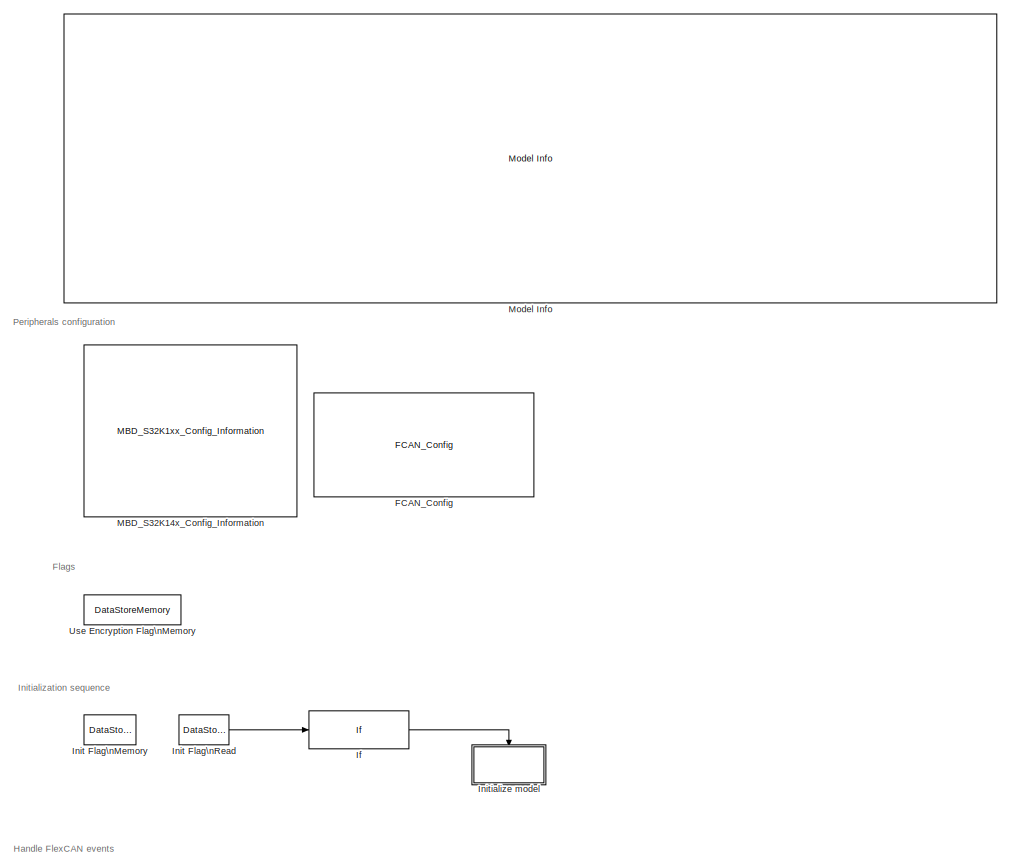
[diagram: root canvas - part 1/2, full width, top band]
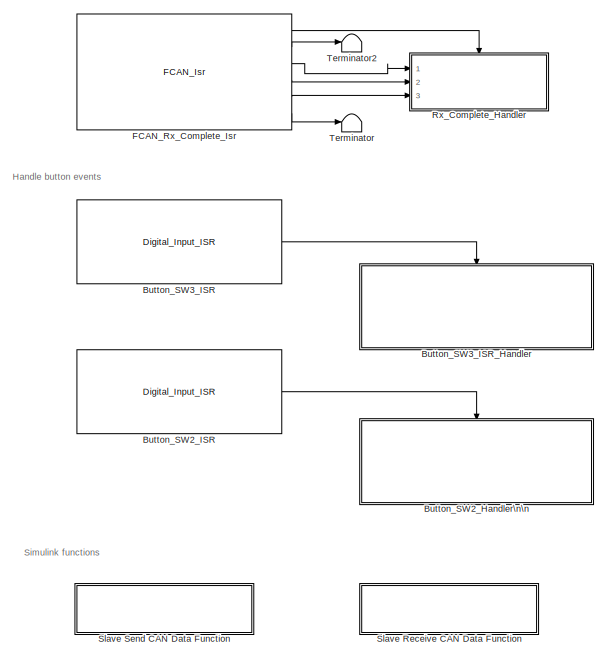
[diagram: root canvas - part 2/2, bottom left region]
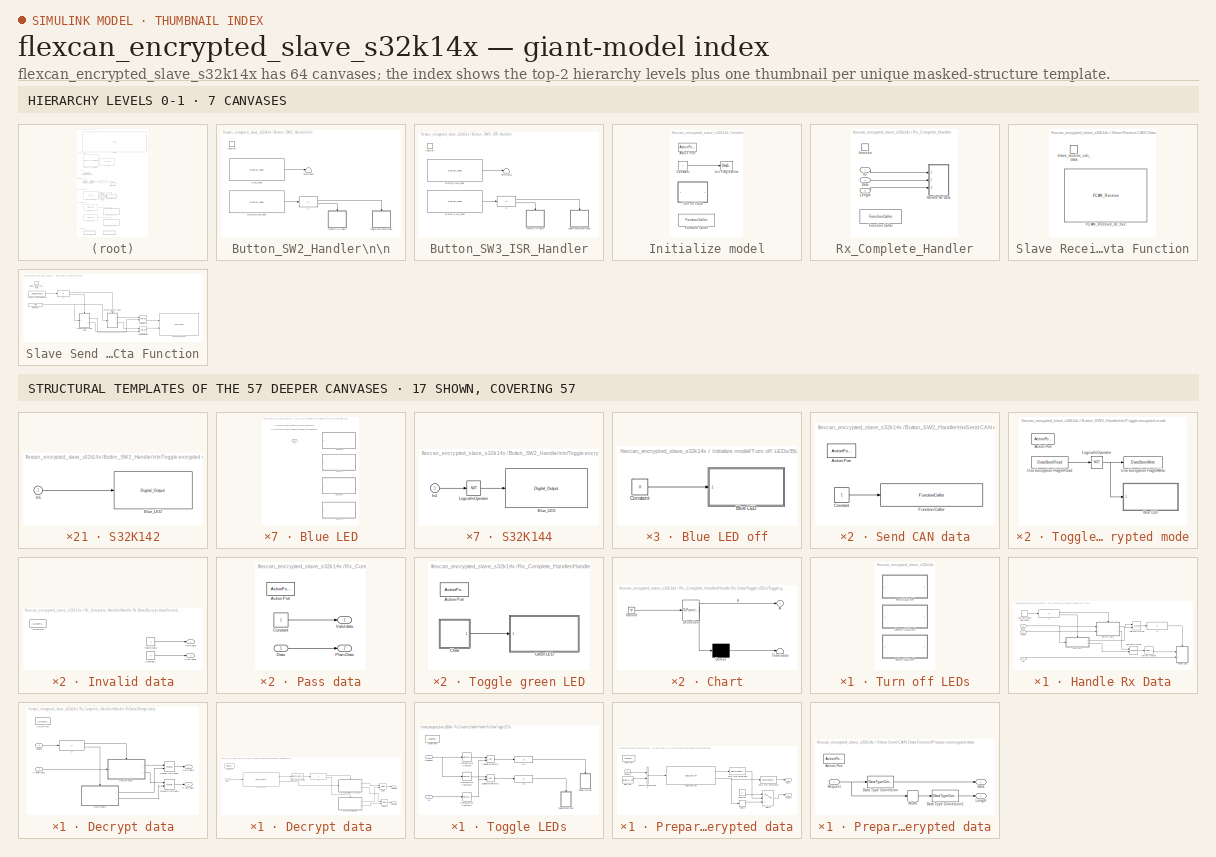
[diagram: thumbnail index - top-2 hierarchy levels (7 canvases) + 17 structural-template representatives of the remaining 57 canvases]
MODEL flexcan_encrypted_slave_s32k14x
KIND model
CONFIG InitFcn = mbd_s32k_consistency_checks(bdroot(gcs));
CONFIG PreLoadFcn = mbd_s32k_examples_preload_cbk;
BLOCK [SubSystem] Button_SW2_Handler\n\n
  Ports = [0, 0, 0, 1]
  RequestExecContextInheritance = off
  SID = 886
  Variant = off
BLOCK [Reference] Button_SW2_Handler\n\n/Button_SW3_Input  REF=mbd_s32k1xx_ec_toolbox/GPIO Blocks/Digital_Input
  Ports = [0, 1]
  SID = 888
  SourceBlock = mbd_s32k1xx_ec_toolbox/GPIO Blocks/Digital_Input
  SourceType = gpio_s32k_input
  gpio_pin = PTC13: [PTC13 | Port C I/O]
  passive_filter = off
  pull_resistor = None
BLOCK [If] Button_SW2_Handler\n\n/If
  IfExpression = u1 == 1
  Ports = [1, 2]
  SID = 889
BLOCK [Reference] Button_SW2_Handler\n\n/SW2_Input  REF=mbd_s32k1xx_ec_toolbox/GPIO Blocks/Digital_Input
  Ports = [0, 1]
  SID = 890
  SourceBlock = mbd_s32k1xx_ec_toolbox/GPIO Blocks/Digital_Input
  SourceType = gpio_s32k_input
  gpio_pin = PTC12: [PTC12 | Port C I/O]
  passive_filter = off
  pull_resistor = None
BLOCK [SubSystem] Button_SW2_Handler\n\n/Send CAN data
  Ports = [0, 0, 0, 0, 0, 0, 0, 1]
  RequestExecContextInheritance = off
  SID = 891
  Variant = off
BLOCK [ActionPort] Button_SW2_Handler\n\n/Send CAN data/Action Port
  SID = 892
BLOCK [Constant] Button_SW2_Handler\n\n/Send CAN data/Constant
  OutDataTypeStr = uint8
  SID = 893
BLOCK [FunctionCaller] Button_SW2_Handler\n\n/Send CAN data/Function Caller
  FunctionPrototype = slave_send_can_data(Request)
  InputArgumentSpecifications = uint8(1)
  Ports = [1]
  SID = 894
BLOCK [Terminator] Button_SW2_Handler\n\n/Terminator
  SID = 895
BLOCK [SubSystem] Button_SW2_Handler\n\n/Toggle encrypted mode
  Ports = [0, 0, 0, 0, 0, 0, 0, 1]
  RequestExecContextInheritance = off
  SID = 896
  Variant = off
BLOCK [ActionPort] Button_SW2_Handler\n\n/Toggle encrypted mode/Action Port
  SID = 897
BLOCK [SubSystem] Button_SW2_Handler\n\n/Toggle encrypted mode/Blue LED
  Ports = [1]
  RequestExecContextInheritance = off
  SID = 1005
  Variant = on
BLOCK [Inport] Button_SW2_Handler\n\n/Toggle encrypted mode/Blue LED/In1
  IconDisplay = Port number
  SID = 1006
BLOCK [SubSystem] Button_SW2_Handler\n\n/Toggle encrypted mode/Blue LED/S32K142
  Ports = [1]
  RequestExecContextInheritance = off
  SID = 1007
  Variant = off
  VariantControl = VSS_S32k142
BLOCK [Reference] Button_SW2_Handler\n\n/Toggle encrypted mode/Blue LED/S32K142/Blue_LED  REF=mbd_s32k1xx_ec_toolbox/GPIO Blocks/Digital_Output
  Ports = [1]
  SID = 1009
  SourceBlock = mbd_s32k1xx_ec_toolbox/GPIO Blocks/Digital_Output
  SourceType = gpio_s32k_output
  drive_strength = Low
  gpio_pin = PTD0: [PTD0 | Port D I/O]
  init_val = Low
BLOCK [Inport] Button_SW2_Handler\n\n/Toggle encrypted mode/Blue LED/S32K142/In1
  IconDisplay = Port number
  SID = 1008
BLOCK [SubSystem] Button_SW2_Handler\n\n/Toggle encrypted mode/Blue LED/S32K144
  Ports = [1]
  RequestExecContextInheritance = off
  SID = 1010
  Variant = off
  VariantControl = VSS_S32k144
BLOCK [Reference] Button_SW2_Handler\n\n/Toggle encrypted mode/Blue LED/S32K144/Blue_LED  REF=mbd_s32k1xx_ec_toolbox/GPIO Blocks/Digital_Output
  Ports = [1]
  SID = 1012
  SourceBlock = mbd_s32k1xx_ec_toolbox/GPIO Blocks/Digital_Output
  SourceType = gpio_s32k_output
  drive_strength = Low
  gpio_pin = PTD0: [PTD0 | Port D I/O]
  init_val = Low
BLOCK [Inport] Button_SW2_Handler\n\n/Toggle encrypted mode/Blue LED/S32K144/In1
  IconDisplay = Port number
  SID = 1011
BLOCK [Logic] Button_SW2_Handler\n\n/Toggle encrypted mode/Blue LED/S32K144/Logical\nOperator
  AllPortsSameDT = off
  Operator = NOT
  OutDataTypeStr = boolean
  Ports = [1, 1]
  SID = 1013
BLOCK [SubSystem] Button_SW2_Handler\n\n/Toggle encrypted mode/Blue LED/S32K146
  Ports = [1]
  RequestExecContextInheritance = off
  SID = 1014
  Variant = off
  VariantControl = VSS_S32k146
BLOCK [Reference] Button_SW2_Handler\n\n/Toggle encrypted mode/Blue LED/S32K146/Blue_LED  REF=mbd_s32k1xx_ec_toolbox/GPIO Blocks/Digital_Output
  Ports = [1]
  SID = 1016
  SourceBlock = mbd_s32k1xx_ec_toolbox/GPIO Blocks/Digital_Output
  SourceType = gpio_s32k_output
  drive_strength = Low
  gpio_pin = PTD0: [PTD0 | Port D I/O]
  init_val = Low
BLOCK [Inport] Button_SW2_Handler\n\n/Toggle encrypted mode/Blue LED/S32K146/In1
  IconDisplay = Port number
  SID = 1015
BLOCK [SubSystem] Button_SW2_Handler\n\n/Toggle encrypted mode/Blue LED/S32K148
  Ports = [1]
  RequestExecContextInheritance = off
  SID = 1017
  Variant = off
  VariantControl = VSS_S32k148
BLOCK [Reference] Button_SW2_Handler\n\n/Toggle encrypted mode/Blue LED/S32K148/Blue_LED  REF=mbd_s32k1xx_ec_toolbox/GPIO Blocks/Digital_Output
  Ports = [1]
  SID = 1019
  SourceBlock = mbd_s32k1xx_ec_toolbox/GPIO Blocks/Digital_Output
  SourceType = gpio_s32k_output
  drive_strength = Low
  gpio_pin = PTE23: [PTE23 | Port E I/O]
  init_val = Low
BLOCK [Inport] Button_SW2_Handler\n\n/Toggle encrypted mode/Blue LED/S32K148/In1
  IconDisplay = Port number
  SID = 1018
BLOCK [Logic] Button_SW2_Handler\n\n/Toggle encrypted mode/Logical\nOperator
  AllPortsSameDT = off
  Operator = NOT
  OutDataTypeStr = boolean
  Ports = [1, 1]
  SID = 900
BLOCK [DataStoreRead] Button_SW2_Handler\n\n/Toggle encrypted mode/Use Encryption Flag\nRead
  DataStoreName = use_encryption_flag
  Ports = [0, 1]
  SID = 901
BLOCK [DataStoreWrite] Button_SW2_Handler\n\n/Toggle encrypted mode/Use Encryption Flag\nWrite
  DataStoreName = use_encryption_flag
  Ports = [1]
  SID = 902
BLOCK [TriggerPort] Button_SW2_Handler\n\n/function
  Ports = []
  SID = 887
  StatesWhenEnabling = held
  TriggerType = function-call
  VariantControl = Variant
BLOCK [Reference] Button_SW2_ISR  REF=mbd_s32k1xx_ec_toolbox/GPIO Blocks/Digital_Input_ISR
  Ports = [0, 1]
  SID = 481
  SourceBlock = mbd_s32k1xx_ec_toolbox/GPIO Blocks/Digital_Input_ISR
  SourceType = gpi_s32k_isr
  gpio_pin = PTC12: [PTC12 | Port C I/O]
  irqc = on rising-edge
  prio = 15
BLOCK [Reference] Button_SW3_ISR  REF=mbd_s32k1xx_ec_toolbox/GPIO Blocks/Digital_Input_ISR
  Ports = [0, 1]
  SID = 480
  SourceBlock = mbd_s32k1xx_ec_toolbox/GPIO Blocks/Digital_Input_ISR
  SourceType = gpi_s32k_isr
  gpio_pin = PTC13: [PTC13 | Port C I/O]
  irqc = on rising-edge
  prio = 15
BLOCK [SubSystem] Button_SW3_ISR_Handler
  Ports = [0, 0, 0, 1]
  RequestExecContextInheritance = off
  SID = 483
  Variant = off
BLOCK [Reference] Button_SW3_ISR_Handler/Button_SW3_Input  REF=mbd_s32k1xx_ec_toolbox/GPIO Blocks/Digital_Input
  Ports = [0, 1]
  SID = 663
  SourceBlock = mbd_s32k1xx_ec_toolbox/GPIO Blocks/Digital_Input
  SourceType = gpio_s32k_input
  gpio_pin = PTC13: [PTC13 | Port C I/O]
  passive_filter = off
  pull_resistor = None
BLOCK [Reference] Button_SW3_ISR_Handler/Digital_SW2_Input  REF=mbd_s32k1xx_ec_toolbox/GPIO Blocks/Digital_Input
  Ports = [0, 1]
  SID = 542
  SourceBlock = mbd_s32k1xx_ec_toolbox/GPIO Blocks/Digital_Input
  SourceType = gpio_s32k_input
  gpio_pin = PTC12: [PTC12 | Port C I/O]
  passive_filter = off
  pull_resistor = None
BLOCK [If] Button_SW3_ISR_Handler/If
  IfExpression = u1 == 1
  Ports = [1, 2]
  SID = 543
BLOCK [SubSystem] Button_SW3_ISR_Handler/Send CAN data
  Ports = [0, 0, 0, 0, 0, 0, 0, 1]
  RequestExecContextInheritance = off
  SID = 810
  Variant = off
BLOCK [ActionPort] Button_SW3_ISR_Handler/Send CAN data/Action Port
  SID = 811
BLOCK [Constant] Button_SW3_ISR_Handler/Send CAN data/Constant
  OutDataTypeStr = uint8
  SID = 807
  Value = 0
BLOCK [FunctionCaller] Button_SW3_ISR_Handler/Send CAN data/Function Caller
  FunctionPrototype = slave_send_can_data(Request)
  InputArgumentSpecifications = uint8(1)
  Ports = [1]
  SID = 885
BLOCK [Terminator] Button_SW3_ISR_Handler/Terminator
  SID = 664
BLOCK [SubSystem] Button_SW3_ISR_Handler/Toggle encrypted mode
  Ports = [0, 0, 0, 0, 0, 0, 0, 1]
  RequestExecContextInheritance = off
  SID = 544
  Variant = off
BLOCK [ActionPort] Button_SW3_ISR_Handler/Toggle encrypted mode/Action Port
  SID = 1021
BLOCK [SubSystem] Button_SW3_ISR_Handler/Toggle encrypted mode/Blue LED
  Ports = [1]
  RequestExecContextInheritance = off
  SID = 1022
  Variant = on
BLOCK [Inport] Button_SW3_ISR_Handler/Toggle encrypted mode/Blue LED/In1
  IconDisplay = Port number
  SID = 1023
BLOCK [SubSystem] Button_SW3_ISR_Handler/Toggle encrypted mode/Blue LED/S32K142
  Ports = [1]
  RequestExecContextInheritance = off
  SID = 1024
  Variant = off
  VariantControl = VSS_S32k142
BLOCK [Reference] Button_SW3_ISR_Handler/Toggle encrypted mode/Blue LED/S32K142/Blue_LED  REF=mbd_s32k1xx_ec_toolbox/GPIO Blocks/Digital_Output
  Ports = [1]
  SID = 1026
  SourceBlock = mbd_s32k1xx_ec_toolbox/GPIO Blocks/Digital_Output
  SourceType = gpio_s32k_output
  drive_strength = Low
  gpio_pin = PTD0: [PTD0 | Port D I/O]
  init_val = Low
BLOCK [Inport] Button_SW3_ISR_Handler/Toggle encrypted mode/Blue LED/S32K142/In1
  IconDisplay = Port number
  SID = 1025
BLOCK [SubSystem] Button_SW3_ISR_Handler/Toggle encrypted mode/Blue LED/S32K144
  Ports = [1]
  RequestExecContextInheritance = off
  SID = 1027
  Variant = off
  VariantControl = VSS_S32k144
BLOCK [Reference] Button_SW3_ISR_Handler/Toggle encrypted mode/Blue LED/S32K144/Blue_LED  REF=mbd_s32k1xx_ec_toolbox/GPIO Blocks/Digital_Output
  Ports = [1]
  SID = 1029
  SourceBlock = mbd_s32k1xx_ec_toolbox/GPIO Blocks/Digital_Output
  SourceType = gpio_s32k_output
  drive_strength = Low
  gpio_pin = PTD0: [PTD0 | Port D I/O]
  init_val = Low
BLOCK [Inport] Button_SW3_ISR_Handler/Toggle encrypted mode/Blue LED/S32K144/In1
  IconDisplay = Port number
  SID = 1028
BLOCK [Logic] Button_SW3_ISR_Handler/Toggle encrypted mode/Blue LED/S32K144/Logical\nOperator
  AllPortsSameDT = off
  Operator = NOT
  OutDataTypeStr = boolean
  Ports = [1, 1]
  SID = 1030
BLOCK [SubSystem] Button_SW3_ISR_Handler/Toggle encrypted mode/Blue LED/S32K146
  Ports = [1]
  RequestExecContextInheritance = off
  SID = 1031
  Variant = off
  VariantControl = VSS_S32k146
BLOCK [Reference] Button_SW3_ISR_Handler/Toggle encrypted mode/Blue LED/S32K146/Blue_LED  REF=mbd_s32k1xx_ec_toolbox/GPIO Blocks/Digital_Output
  Ports = [1]
  SID = 1033
  SourceBlock = mbd_s32k1xx_ec_toolbox/GPIO Blocks/Digital_Output
  SourceType = gpio_s32k_output
  drive_strength = Low
  gpio_pin = PTD0: [PTD0 | Port D I/O]
  init_val = Low
BLOCK [Inport] Button_SW3_ISR_Handler/Toggle encrypted mode/Blue LED/S32K146/In1
  IconDisplay = Port number
  SID = 1032
BLOCK [SubSystem] Button_SW3_ISR_Handler/Toggle encrypted mode/Blue LED/S32K148
  Ports = [1]
  RequestExecContextInheritance = off
  SID = 1034
  Variant = off
  VariantControl = VSS_S32k148
BLOCK [Reference] Button_SW3_ISR_Handler/Toggle encrypted mode/Blue LED/S32K148/Blue_LED  REF=mbd_s32k1xx_ec_toolbox/GPIO Blocks/Digital_Output
  Ports = [1]
  SID = 1036
  SourceBlock = mbd_s32k1xx_ec_toolbox/GPIO Blocks/Digital_Output
  SourceType = gpio_s32k_output
  drive_strength = Low
  gpio_pin = PTE23: [PTE23 | Port E I/O]
  init_val = Low
BLOCK [Inport] Button_SW3_ISR_Handler/Toggle encrypted mode/Blue LED/S32K148/In1
  IconDisplay = Port number
  SID = 1035
BLOCK [Logic] Button_SW3_ISR_Handler/Toggle encrypted mode/Logical\nOperator
  AllPortsSameDT = off
  Operator = NOT
  OutDataTypeStr = boolean
  Ports = [1, 1]
  SID = 1038
BLOCK [DataStoreRead] Button_SW3_ISR_Handler/Toggle encrypted mode/Use Encryption Flag\nRead
  DataStoreName = use_encryption_flag
  Ports = [0, 1]
  SID = 1039
BLOCK [DataStoreWrite] Button_SW3_ISR_Handler/Toggle encrypted mode/Use Encryption Flag\nWrite
  DataStoreName = use_encryption_flag
  Ports = [1]
  SID = 1040
BLOCK [TriggerPort] Button_SW3_ISR_Handler/function
  Ports = []
  SID = 487
  StatesWhenEnabling = held
  TriggerType = function-call
  VariantControl = Variant
BLOCK [Reference] FCAN_Config  REF=mbd_s32k1xx_ec_toolbox/Communication Blocks/CAN Blocks/FCAN_Config
  Ports = []
  Priority = 1
  SID = 2
  SourceBlock = mbd_s32k1xx_ec_toolbox/Communication Blocks/CAN Blocks/FCAN_Config
  SourceType = fcan_s32k_config
  bitrate = 500
  bitrate_adv_opts = off
  can_cbt_presdiv = 3
  can_cbt_propseg = 27
  can_cbt_pseg1 = 5
  can_cbt_pseg2 = 5
  can_cbt_rjw = 3
  can_clk_src = Peripheral clock
  can_fd_enable = on
  can_fifo_id_filter = {'0x0', '0x0', '0x0', '0x0', '0x0', '0x0', '0x0', '0x0'}
  can_fifo_id_filter_extended = off
  can_fifo_id_filter_remote = off
  can_fifo_id_format = A
  can_idfilter_extendedid = off
  can_idfilter_id1 = 0
  can_idfilter_id2 = 0
  can_idfilter_remoteframe = off
  can_idfilter_type = Match exact
  can_instance = 0
  can_match_timeout = 1
  can_max_num_mb = 16
  can_mode = Normal mode
  can_multiple_matches_en = off
  can_num_id_filters = 8
  can_num_matches = 1
  can_payload = 8
  can_payloadfilter_dlchigh = 0
  can_payloadfilter_dlclow = 0
  can_payloadfilter_enable = on
  can_payloadfilter_payload1_b0 = 0
  can_payloadfilter_payload1_b1 = 0
  can_payloadfilter_payload1_b2 = 0
  can_payloadfilter_payload1_b3 = 0
  can_payloadfilter_payload1_b4 = 0
  can_payloadfilter_payload1_b5 = 0
  can_payloadfilter_payload1_b6 = 0
  can_payloadfilter_payload1_b7 = 0
  can_payloadfilter_payload2_b0 = 0
  can_payloadfilter_payload2_b1 = 0
  can_payloadfilter_payload2_b2 = 0
  can_payloadfilter_payload2_b3 = 0
  can_payloadfilter_payload2_b4 = 0
  can_payloadfilter_payload2_b5 = 0
  can_payloadfilter_payload2_b6 = 0
  can_payloadfilter_payload2_b7 = 0
  can_payloadfilter_type = Match exact
  can_pn_enable = off
  can_presdiv = 7
  can_propseg = 7
  can_pseg1 = 6
  can_pseg2 = 3
  can_rjw = 3
  can_rx = PTE4: [CAN0_RX | CAN Rx channel]
  can_rxfifo_enable = off
  can_timeout_en = off
  can_tx = PTE5: [CAN0_TX | CAN Tx Channel]
  can_wakeup_match = off
  can_wakeup_timeout = off
  show_adv_opts = on
BLOCK [Reference] FCAN_Rx_Complete_Isr  REF=mbd_s32k1xx_ec_toolbox/Communication Blocks/CAN Blocks/FCAN_Isr
  Ports = [0, 6]
  SID = 86
  SourceBlock = mbd_s32k1xx_ec_toolbox/Communication Blocks/CAN Blocks/FCAN_Isr
  SourceType = fcan_s32k_isr
  can_event = Rx Complete
  can_instance = 0
BLOCK [If] If
  IfExpression = u1 == 0
  Ports = [1, 1]
  SID = 144
  ShowElse = off
BLOCK [DataStoreMemory] Init Flag\nMemory
  DataStoreName = init_flag
  OutDataTypeStr = uint32
  ReadBeforeWriteMsg = warning
  SID = 138
  ShowAdditionalParam = off
  WriteAfterReadMsg = warning
  WriteAfterWriteMsg = warning
BLOCK [DataStoreRead] Init Flag\nRead
  DataStoreName = init_flag
  Ports = [0, 1]
  SID = 139
BLOCK [SubSystem] Initialize model
  Ports = [0, 0, 0, 0, 0, 0, 0, 1]
  RequestExecContextInheritance = off
  SID = 145
  TreatAsAtomicUnit = on
  Variant = off
BLOCK [ActionPort] Initialize model/Action Port
  SID = 147
BLOCK [Constant] Initialize model/Constant
  OutDataTypeStr = uint32
  SID = 462
BLOCK [FunctionCaller] Initialize model/Function Caller
  FunctionPrototype = slave_receive_can_data()
  Ports = []
  Priority = 2
  SID = 882
BLOCK [DataStoreWrite] Initialize model/Init Flag\nWrite
  DataStoreName = init_flag
  Ports = [1]
  SID = 461
BLOCK [SubSystem] Initialize model/Turn off LEDs
  Ports = []
  Priority = 1
  RequestExecContextInheritance = off
  SID = 883
  Variant = off
BLOCK [SubSystem] Initialize model/Turn off LEDs/Blue LED off
  Ports = []
  RequestExecContextInheritance = off
  SID = 903
  Variant = off
BLOCK [SubSystem] Initialize model/Turn off LEDs/Blue LED off/Blue LED
  Ports = [1]
  RequestExecContextInheritance = off
  SID = 904
  Variant = on
BLOCK [Inport] Initialize model/Turn off LEDs/Blue LED off/Blue LED/In1
  IconDisplay = Port number
  SID = 905
BLOCK [SubSystem] Initialize model/Turn off LEDs/Blue LED off/Blue LED/S32K142
  Ports = [1]
  RequestExecContextInheritance = off
  SID = 906
  Variant = off
  VariantControl = VSS_S32k142
BLOCK [Reference] Initialize model/Turn off LEDs/Blue LED off/Blue LED/S32K142/Blue_LED  REF=mbd_s32k1xx_ec_toolbox/GPIO Blocks/Digital_Output
  Ports = [1]
  SID = 908
  SourceBlock = mbd_s32k1xx_ec_toolbox/GPIO Blocks/Digital_Output
  SourceType = gpio_s32k_output
  drive_strength = Low
  gpio_pin = PTD0: [PTD0 | Port D I/O]
  init_val = Low
BLOCK [Inport] Initialize model/Turn off LEDs/Blue LED off/Blue LED/S32K142/In1
  IconDisplay = Port number
  SID = 907
BLOCK [SubSystem] Initialize model/Turn off LEDs/Blue LED off/Blue LED/S32K144
  Ports = [1]
  RequestExecContextInheritance = off
  SID = 909
  Variant = off
  VariantControl = VSS_S32k144
BLOCK [Reference] Initialize model/Turn off LEDs/Blue LED off/Blue LED/S32K144/Blue_LED  REF=mbd_s32k1xx_ec_toolbox/GPIO Blocks/Digital_Output
  Ports = [1]
  SID = 911
  SourceBlock = mbd_s32k1xx_ec_toolbox/GPIO Blocks/Digital_Output
  SourceType = gpio_s32k_output
  drive_strength = Low
  gpio_pin = PTD0: [PTD0 | Port D I/O]
  init_val = Low
BLOCK [Inport] Initialize model/Turn off LEDs/Blue LED off/Blue LED/S32K144/In1
  IconDisplay = Port number
  SID = 910
BLOCK [Logic] Initialize model/Turn off LEDs/Blue LED off/Blue LED/S32K144/Logical\nOperator
  AllPortsSameDT = off
  Operator = NOT
  OutDataTypeStr = boolean
  Ports = [1, 1]
  SID = 912
BLOCK [SubSystem] Initialize model/Turn off LEDs/Blue LED off/Blue LED/S32K146
  Ports = [1]
  RequestExecContextInheritance = off
  SID = 913
  Variant = off
  VariantControl = VSS_S32k146
BLOCK [Reference] Initialize model/Turn off LEDs/Blue LED off/Blue LED/S32K146/Blue_LED  REF=mbd_s32k1xx_ec_toolbox/GPIO Blocks/Digital_Output
  Ports = [1]
  SID = 915
  SourceBlock = mbd_s32k1xx_ec_toolbox/GPIO Blocks/Digital_Output
  SourceType = gpio_s32k_output
  drive_strength = Low
  gpio_pin = PTD0: [PTD0 | Port D I/O]
  init_val = Low
BLOCK [Inport] Initialize model/Turn off LEDs/Blue LED off/Blue LED/S32K146/In1
  IconDisplay = Port number
  SID = 914
BLOCK [SubSystem] Initialize model/Turn off LEDs/Blue LED off/Blue LED/S32K148
  Ports = [1]
  RequestExecContextInheritance = off
  SID = 916
  Variant = off
  VariantControl = VSS_S32k148
BLOCK [Reference] Initialize model/Turn off LEDs/Blue LED off/Blue LED/S32K148/Blue_LED  REF=mbd_s32k1xx_ec_toolbox/GPIO Blocks/Digital_Output
  Ports = [1]
  SID = 918
  SourceBlock = mbd_s32k1xx_ec_toolbox/GPIO Blocks/Digital_Output
  SourceType = gpio_s32k_output
  drive_strength = Low
  gpio_pin = PTE23: [PTE23 | Port E I/O]
  init_val = Low
BLOCK [Inport] Initialize model/Turn off LEDs/Blue LED off/Blue LED/S32K148/In1
  IconDisplay = Port number
  SID = 917
BLOCK [Constant] Initialize model/Turn off LEDs/Blue LED off/Constant
  OutDataTypeStr = boolean
  SID = 920
  Value = 0
BLOCK [SubSystem] Initialize model/Turn off LEDs/Green LED off
  Ports = []
  RequestExecContextInheritance = off
  SID = 921
  Variant = off
BLOCK [Constant] Initialize model/Turn off LEDs/Green LED off/Constant
  OutDataTypeStr = boolean
  SID = 922
  Value = 0
BLOCK [SubSystem] Initialize model/Turn off LEDs/Green LED off/Green LED
  Ports = [1]
  RequestExecContextInheritance = off
  SID = 923
  Variant = on
BLOCK [Inport] Initialize model/Turn off LEDs/Green LED off/Green LED/In1
  IconDisplay = Port number
  SID = 924
BLOCK [SubSystem] Initialize model/Turn off LEDs/Green LED off/Green LED/S32K142
  Ports = [1]
  RequestExecContextInheritance = off
  SID = 925
  Variant = off
  VariantControl = VSS_S32k142
BLOCK [Reference] Initialize model/Turn off LEDs/Green LED off/Green LED/S32K142/Green_LED  REF=mbd_s32k1xx_ec_toolbox/GPIO Blocks/Digital_Output
  Ports = [1]
  SID = 927
  SourceBlock = mbd_s32k1xx_ec_toolbox/GPIO Blocks/Digital_Output
  SourceType = gpio_s32k_output
  drive_strength = Low
  gpio_pin = PTD16: [PTD16 | Port D I/O]
  init_val = Low
BLOCK [Inport] Initialize model/Turn off LEDs/Green LED off/Green LED/S32K142/In1
  IconDisplay = Port number
  SID = 926
BLOCK [SubSystem] Initialize model/Turn off LEDs/Green LED off/Green LED/S32K144
  Ports = [1]
  RequestExecContextInheritance = off
  SID = 928
  Variant = off
  VariantControl = VSS_S32k144
BLOCK [Reference] Initialize model/Turn off LEDs/Green LED off/Green LED/S32K144/Green_LED  REF=mbd_s32k1xx_ec_toolbox/GPIO Blocks/Digital_Output
  Ports = [1]
  SID = 930
  SourceBlock = mbd_s32k1xx_ec_toolbox/GPIO Blocks/Digital_Output
  SourceType = gpio_s32k_output
  drive_strength = Low
  gpio_pin = PTD16: [PTD16 | Port D I/O]
  init_val = Low
BLOCK [Inport] Initialize model/Turn off LEDs/Green LED off/Green LED/S32K144/In1
  IconDisplay = Port number
  SID = 929
BLOCK [Logic] Initialize model/Turn off LEDs/Green LED off/Green LED/S32K144/Logical\nOperator
  AllPortsSameDT = off
  Operator = NOT
  OutDataTypeStr = boolean
  Ports = [1, 1]
  SID = 931
BLOCK [SubSystem] Initialize model/Turn off LEDs/Green LED off/Green LED/S32K146
  Ports = [1]
  RequestExecContextInheritance = off
  SID = 932
  Variant = off
  VariantControl = VSS_S32k146
BLOCK [Reference] Initialize model/Turn off LEDs/Green LED off/Green LED/S32K146/Green_LED  REF=mbd_s32k1xx_ec_toolbox/GPIO Blocks/Digital_Output
  Ports = [1]
  SID = 934
  SourceBlock = mbd_s32k1xx_ec_toolbox/GPIO Blocks/Digital_Output
  SourceType = gpio_s32k_output
  drive_strength = Low
  gpio_pin = PTD16: [PTD16 | Port D I/O]
  init_val = Low
BLOCK [Inport] Initialize model/Turn off LEDs/Green LED off/Green LED/S32K146/In1
  IconDisplay = Port number
  SID = 933
BLOCK [SubSystem] Initialize model/Turn off LEDs/Green LED off/Green LED/S32K148
  Ports = [1]
  RequestExecContextInheritance = off
  SID = 935
  Variant = off
  VariantControl = VSS_S32k148
BLOCK [Reference] Initialize model/Turn off LEDs/Green LED off/Green LED/S32K148/Green_LED  REF=mbd_s32k1xx_ec_toolbox/GPIO Blocks/Digital_Output
  Ports = [1]
  SID = 937
  SourceBlock = mbd_s32k1xx_ec_toolbox/GPIO Blocks/Digital_Output
  SourceType = gpio_s32k_output
  drive_strength = Low
  gpio_pin = PTE22: [PTE22 | Port E I/O]
  init_val = Low
BLOCK [Inport] Initialize model/Turn off LEDs/Green LED off/Green LED/S32K148/In1
  IconDisplay = Port number
  SID = 936
BLOCK [SubSystem] Initialize model/Turn off LEDs/Red LED off
  Ports = []
  RequestExecContextInheritance = off
  SID = 939
  Variant = off
BLOCK [Constant] Initialize model/Turn off LEDs/Red LED off/Constant
  OutDataTypeStr = boolean
  SID = 940
  Value = 0
BLOCK [SubSystem] Initialize model/Turn off LEDs/Red LED off/Red LED
  Ports = [1]
  RequestExecContextInheritance = off
  SID = 941
  Variant = on
BLOCK [Inport] Initialize model/Turn off LEDs/Red LED off/Red LED/In1
  IconDisplay = Port number
  SID = 942
BLOCK [SubSystem] Initialize model/Turn off LEDs/Red LED off/Red LED/S32K142
  Ports = [1]
  RequestExecContextInheritance = off
  SID = 943
  Variant = off
  VariantControl = VSS_S32k142
BLOCK [Inport] Initialize model/Turn off LEDs/Red LED off/Red LED/S32K142/In1
  IconDisplay = Port number
  SID = 944
BLOCK [Reference] Initialize model/Turn off LEDs/Red LED off/Red LED/S32K142/Red_LED  REF=mbd_s32k1xx_ec_toolbox/GPIO Blocks/Digital_Output
  Ports = [1]
  SID = 945
  SourceBlock = mbd_s32k1xx_ec_toolbox/GPIO Blocks/Digital_Output
  SourceType = gpio_s32k_output
  drive_strength = Low
  gpio_pin = PTD15: [PTD15 | Port D I/O]
  init_val = Low
BLOCK [SubSystem] Initialize model/Turn off LEDs/Red LED off/Red LED/S32K144
  Ports = [1]
  RequestExecContextInheritance = off
  SID = 946
  Variant = off
  VariantControl = VSS_S32k144
BLOCK [Inport] Initialize model/Turn off LEDs/Red LED off/Red LED/S32K144/In1
  IconDisplay = Port number
  SID = 947
BLOCK [Logic] Initialize model/Turn off LEDs/Red LED off/Red LED/S32K144/Logical\nOperator
  AllPortsSameDT = off
  Operator = NOT
  OutDataTypeStr = boolean
  Ports = [1, 1]
  SID = 948
BLOCK [Reference] Initialize model/Turn off LEDs/Red LED off/Red LED/S32K144/Red_LED  REF=mbd_s32k1xx_ec_toolbox/GPIO Blocks/Digital_Output
  Ports = [1]
  SID = 949
  SourceBlock = mbd_s32k1xx_ec_toolbox/GPIO Blocks/Digital_Output
  SourceType = gpio_s32k_output
  drive_strength = Low
  gpio_pin = PTD15: [PTD15 | Port D I/O]
  init_val = Low
BLOCK [SubSystem] Initialize model/Turn off LEDs/Red LED off/Red LED/S32K146
  Ports = [1]
  RequestExecContextInheritance = off
  SID = 950
  Variant = off
  VariantControl = VSS_S32k146
BLOCK [Inport] Initialize model/Turn off LEDs/Red LED off/Red LED/S32K146/In1
  IconDisplay = Port number
  SID = 951
BLOCK [Reference] Initialize model/Turn off LEDs/Red LED off/Red LED/S32K146/Red_LED  REF=mbd_s32k1xx_ec_toolbox/GPIO Blocks/Digital_Output
  Ports = [1]
  SID = 952
  SourceBlock = mbd_s32k1xx_ec_toolbox/GPIO Blocks/Digital_Output
  SourceType = gpio_s32k_output
  drive_strength = Low
  gpio_pin = PTD15: [PTD15 | Port D I/O]
  init_val = Low
BLOCK [SubSystem] Initialize model/Turn off LEDs/Red LED off/Red LED/S32K148
  Ports = [1]
  RequestExecContextInheritance = off
  SID = 953
  Variant = off
  VariantControl = VSS_S32k148
BLOCK [Inport] Initialize model/Turn off LEDs/Red LED off/Red LED/S32K148/In1
  IconDisplay = Port number
  SID = 954
BLOCK [Reference] Initialize model/Turn off LEDs/Red LED off/Red LED/S32K148/Red_LED  REF=mbd_s32k1xx_ec_toolbox/GPIO Blocks/Digital_Output
  Ports = [1]
  SID = 955
  SourceBlock = mbd_s32k1xx_ec_toolbox/GPIO Blocks/Digital_Output
  SourceType = gpio_s32k_output
  drive_strength = Low
  gpio_pin = PTE21: [PTE21 | Port E I/O]
  init_val = Low
BLOCK [Reference] MBD_S32K14x_Config_Information  REF=mbd_s32k1xx_ec_toolbox/MBD_S32K1xx_Config_Information
  ADC_PcrCheckEnDis = on
  AMMCLIB_PcrCheckEnDis = on
  CMP_PcrCheckEnDis = on
  CSEc_PcrCheckEnDis = on
  ConfigParams_PcrCheckEnDis = on
  FM_PcrCheckEnDis = on
  FTM_Dual_Edge_Inputs_PcrCheckEnDis = on
  FTM_Hall_Sensor_Inputs_PcrCheckEnDis = on
  FTM_Input_Edge_Inputs_PcrCheckEnDis = on
  FTM_PWM_PcrCheckEnDis = on
  FTM_Quadrature_Inputs_PcrCheckEnDis = on
  FlexCAN_PcrCheckEnDis = on
  FlexIO_PcrCheckEnDis = on
  GPIO_InputPcrCheckEnDis = on
  GPIO_OutputPcrCheckEnDis = on
  LIN_PcrCheckEnDis = on
  LPI2C_PcrCheckEnDis = on
  LPSPI_PcrCheckEnDis = on
  LPTMR_PcrCheckEnDis = on
  LPUART_PcrCheckEnDis = on
  ModelRef_PcrCheckEnDis = on
  PDB0_PcrCheckEnDis = on
  PIT_PcrCheckEnDis = on
  Ports = []
  Profile_PcrCheckEnDis = on
  RTC_PcrCheckEnDis = on
  SBC_PcrCheckEnDis = on
  SID = 1
  SourceBlock = mbd_s32k1xx_ec_toolbox/MBD_S32K1xx_Config_Information
  SourceType = MBDTBX_EC_S32K
  WDOG_PcrCheckEnDis = on
  config_params = []
  disp_str = Target : S32K144-64KB_SRAM\nPackage : 100-pin\nSystem clock : 80 MHz\nXTAL clock : External 8 MHz\nCompiler : GCC\nTarget Type : FLASH\nDownload Code after build : (COM1, 57600)\nStep Tick Interrupt Priority : 15
  ds_import_enable = on
  eDMA_PcrCheckEnDis = on
  gcc_target_assemble_opts = -mcpu=cortex-m4 -mthumb -mfloat-abi=hard -mfpu=fpv4-sp-d16 -g
  gcc_target_compile_opts = -mcpu=cortex-m4 -mthumb -mfloat-abi=hard -mfpu=fpv4-sp-d16 -O1 -g -gstrict-dwarf
  gcc_target_default_lcf = on
  gcc_target_link_opts = -mcpu=cortex-m4 -mthumb -mfloat-abi=hard -mfpu=fpv4-sp-d16
  gcc_target_user_lcf = S32K144_64_flash.ld
  ghs_target_assemble_opts = -cpu=cortexm4f -fpu=vfpv4_d16
  ghs_target_compile_opts = -cpu=cortexm4f -thumb -DARM_MATH_CM4 -fpu=vfpv4_d16 -fsingle -Ogeneral -Wundef -Wimplicit-int -Wshadow -Wtrigraphs --no_commons --gnu_asm -gnu99 -gdwarf-2 -G
  ghs_target_default_lcf = off
  ghs_target_link_opts = -cpu=cortexm4f -thumb -fpu=vfpv4_d16
  ghs_target_user_lcf = S32K144_64_flash.ld
  iar_target_assemble_opts = --cpu Cortex-M4F --thumb --fpu VFPv4_sp
  iar_target_compile_opts = --cpu=Cortex-M4F --thumb --fpu=VFPv4_sp -Ol -e --debug --dlib_config normal
  iar_target_default_lcf = off
  iar_target_link_opts = --no_exceptions --vfe --inline
  iar_target_user_lcf = S32K144_64_flash.icf
  mbdt_ver = 0
  mcu_steptick_prio = 15
  mcu_steptick_timer = LPIT Channel 0
  mcu_system_clock_freq = 80
  mcu_target_name = S32K144
  mcu_target_package = 100-LQFP
  mcu_target_sram_size = 64KB
  mcu_xtal_freq = External 8
  pil_download_enable = off
  pil_download_rate = 57600
  pil_opensda_drive = Custom
  pil_opensda_drive_custom = D
  pil_uart_instance = 0
  pil_uart_rx = PTA2: [LPUART0_RX | Receive]
  pil_uart_tx = PTA3: [LPUART0_TX | Transmit]
  rbl_com_port = Custom
  rbl_com_port_custom = COM1
  rbl_download_enable = off
  rbl_download_interface = OpenSDA
  rbl_restart_request = off
  rbl_start_delay = 5000000
  target_compiler = GCC
  target_memory = FLASH
BLOCK [Reference] Model Info  REF=simulink/Model-Wide\nUtilities/Model Info
  DisplayStringWithTags = Model Name: %<ModelName>\n\nDescription: %<Description>
  Frame = on
  HorizontalTextAlignment = Left
  LeftAlignmentValue = 0.02
  MaskDisplayString = Model Name: flexcan_encrypted_slave_s32k14x\\n\\nDescription: This model shows the usage of the FlexCAN module configured to use Flexible Data Rate and the CSEc module from the S32K14x MCUs.\\n\\nThe application will wait for frames to be received on the configured message buffer or for an event raised by pressing one of the two buttons, SW2 and SW3, which will trigger a frame send to the recipien...<+936ch>
  Ports = []
  SID = 74
  SourceBlock = simulink/Model-Wide\nUtilities/Model Info
  SourceProductBaseCode = SL
  SourceProductName = Simulink
  SourceType = CMBlock
BLOCK [SubSystem] Rx_Complete_Handler
  Ports = [3, 0, 0, 1]
  RTWSystemCode = Nonreusable function
  RequestExecContextInheritance = off
  SID = 160
  TreatAsAtomicUnit = on
  Variant = off
BLOCK [Inport] Rx_Complete_Handler/Data
  IconDisplay = Port number
  Port = 2
  SID = 563
BLOCK [FunctionCaller] Rx_Complete_Handler/Function Caller
  FunctionPrototype = slave_receive_can_data()
  Ports = []
  Priority = 2
  SID = 884
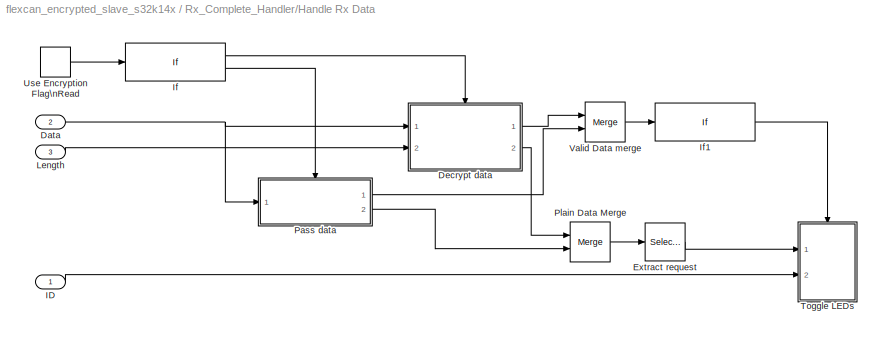
BLOCK [SubSystem] Rx_Complete_Handler/Handle Rx Data
  Ports = [3]
  Priority = 1
  RequestExecContextInheritance = off
  SID = 669
  Variant = off
BLOCK [Inport] Rx_Complete_Handler/Handle Rx Data/Data
  IconDisplay = Port number
  Port = 2
  SID = 671
BLOCK [SubSystem] Rx_Complete_Handler/Handle Rx Data/Decrypt data
  Ports = [2, 2, 0, 0, 0, 0, 0, 1]
  RequestExecContextInheritance = off
  SID = 569
  TreatAsAtomicUnit = on
  Variant = off
BLOCK [ActionPort] Rx_Complete_Handler/Handle Rx Data/Decrypt data/Action Port
  SID = 570
BLOCK [Inport] Rx_Complete_Handler/Handle Rx Data/Decrypt data/Cipher data
  IconDisplay = Port number
  SID = 580
BLOCK [SubSystem] Rx_Complete_Handler/Handle Rx Data/Decrypt data/Decrypt data
  Ports = [1, 2, 0, 0, 0, 0, 0, 1]
  RequestExecContextInheritance = off
  SID = 585
  Variant = off
BLOCK [ActionPort] Rx_Complete_Handler/Handle Rx Data/Decrypt data/Decrypt data/Action Port
  SID = 589
BLOCK [Reference] Rx_Complete_Handler/Handle Rx Data/Decrypt data/Decrypt data/CSEc_Decrypt  REF=mbd_s32k1xx_ec_toolbox/Core and System Blocks/CSEc Blocks/CSEc_Decrypt
  Ports = [1, 2]
  SID = 579
  SourceBlock = mbd_s32k1xx_ec_toolbox/Core and System Blocks/CSEc Blocks/CSEc_Decrypt
  SourceType = csec_s32k_decrypt
  csec_key_id = KEY_1
  csec_mode = Electronic Codebook (ECB)
  csec_timeout = 1
BLOCK [DataTypeConversion] Rx_Complete_Handler/Handle Rx Data/Decrypt data/Decrypt data/Data Type Conversion
  OutDataTypeStr = uint32
  RndMeth = Floor
  SID = 662
  SaturateOnIntegerOverflow = off
BLOCK [SubSystem] Rx_Complete_Handler/Handle Rx Data/Decrypt data/Decrypt data/Decrypt operation failed
  Ports = [0, 2, 0, 0, 0, 0, 0, 1]
  RequestExecContextInheritance = off
  SID = 651
  Variant = off
BLOCK [ActionPort] Rx_Complete_Handler/Handle Rx Data/Decrypt data/Decrypt data/Decrypt operation failed/Action Port
  SID = 653
BLOCK [Constant] Rx_Complete_Handler/Handle Rx Data/Decrypt data/Decrypt data/Decrypt operation failed/Constant
  OutDataTypeStr = uint8
  SID = 659
  Value = 0
BLOCK [Constant] Rx_Complete_Handler/Handle Rx Data/Decrypt data/Decrypt data/Decrypt operation failed/Invalid data
  OutDataTypeStr = boolean
  SID = 654
BLOCK [Outport] Rx_Complete_Handler/Handle Rx Data/Decrypt data/Decrypt data/Decrypt operation failed/Plain data
  IconDisplay = Port number
  InitialOutput = 0
  Port = 2
  SID = 656
BLOCK [Outport] Rx_Complete_Handler/Handle Rx Data/Decrypt data/Decrypt data/Decrypt operation failed/Valid data
  IconDisplay = Port number
  InitialOutput = 0
  SID = 655
BLOCK [SubSystem] Rx_Complete_Handler/Handle Rx Data/Decrypt data/Decrypt data/Decrypt operation succeeded
  Ports = [1, 2, 0, 0, 0, 0, 0, 1]
  RequestExecContextInheritance = off
  SID = 642
  Variant = off
BLOCK [ActionPort] Rx_Complete_Handler/Handle Rx Data/Decrypt data/Decrypt data/Decrypt operation succeeded/Action Port
  SID = 643
BLOCK [Inport] Rx_Complete_Handler/Handle Rx Data/Decrypt data/Decrypt data/Decrypt operation succeeded/In1
  IconDisplay = Port number
  SID = 648
BLOCK [Constant] Rx_Complete_Handler/Handle Rx Data/Decrypt data/Decrypt data/Decrypt operation succeeded/Invalid data
  OutDataTypeStr = boolean
  SID = 645
BLOCK [Outport] Rx_Complete_Handler/Handle Rx Data/Decrypt data/Decrypt data/Decrypt operation succeeded/Plain data
  IconDisplay = Port number
  Port = 2
  SID = 647
BLOCK [Outport] Rx_Complete_Handler/Handle Rx Data/Decrypt data/Decrypt data/Decrypt operation succeeded/Valid data
  IconDisplay = Port number
  InitialOutput = 0
  SID = 646
BLOCK [If] Rx_Complete_Handler/Handle Rx Data/Decrypt data/Decrypt data/If
  IfExpression = u1 == 0
  Ports = [1, 2]
  SID = 650
BLOCK [Inport] Rx_Complete_Handler/Handle Rx Data/Decrypt data/Decrypt data/In1
  IconDisplay = Port number
  SID = 586
BLOCK [Merge] Rx_Complete_Handler/Handle Rx Data/Decrypt data/Decrypt data/Merge
  Ports = [2, 1]
  SID = 660
BLOCK [Merge] Rx_Complete_Handler/Handle Rx Data/Decrypt data/Decrypt data/Merge1
  AllowUnequalInputPortWidths = on
  Ports = [2, 1]
  SID = 661
BLOCK [Outport] Rx_Complete_Handler/Handle Rx Data/Decrypt data/Decrypt data/Plain data
  IconDisplay = Port number
  InitialOutput = 0
  Port = 2
  SID = 588
BLOCK [Outport] Rx_Complete_Handler/Handle Rx Data/Decrypt data/Decrypt data/Valid data
  IconDisplay = Port number
  SID = 649
BLOCK [If] Rx_Complete_Handler/Handle Rx Data/Decrypt data/If
  IfExpression = u1 == 16
  Ports = [1, 2]
  SID = 583
BLOCK [SubSystem] Rx_Complete_Handler/Handle Rx Data/Decrypt data/Invalid data
  Ports = [0, 2, 0, 0, 0, 0, 0, 1]
  RequestExecContextInheritance = off
  SID = 608
  Variant = off
BLOCK [ActionPort] Rx_Complete_Handler/Handle Rx Data/Decrypt data/Invalid data/Action Port
  SID = 610
BLOCK [Constant] Rx_Complete_Handler/Handle Rx Data/Decrypt data/Invalid data/Constant1
  OutDataTypeStr = uint8
  SID = 618
  Value = 0
BLOCK [Constant] Rx_Complete_Handler/Handle Rx Data/Decrypt data/Invalid data/Invalid data
  OutDataTypeStr = boolean
  SID = 617
  Value = 0
BLOCK [Outport] Rx_Complete_Handler/Handle Rx Data/Decrypt data/Invalid data/Plain data
  IconDisplay = Port number
  InitialOutput = 0
  Port = 2
  SID = 614
BLOCK [Outport] Rx_Complete_Handler/Handle Rx Data/Decrypt data/Invalid data/Valid data
  IconDisplay = Port number
  InitialOutput = 0
  SID = 613
BLOCK [Inport] Rx_Complete_Handler/Handle Rx Data/Decrypt data/Length
  IconDisplay = Port number
  Port = 2
  SID = 760
BLOCK [Merge] Rx_Complete_Handler/Handle Rx Data/Decrypt data/Merge Plain data
  AllowUnequalInputPortWidths = on
  Ports = [2, 1]
  SID = 616
BLOCK [Merge] Rx_Complete_Handler/Handle Rx Data/Decrypt data/Merge Valid data
  Ports = [2, 1]
  SID = 615
BLOCK [Outport] Rx_Complete_Handler/Handle Rx Data/Decrypt data/Plain data
  IconDisplay = Port number
  Port = 2
  SID = 582
BLOCK [Outport] Rx_Complete_Handler/Handle Rx Data/Decrypt data/Valid data
  IconDisplay = Port number
  SID = 581
BLOCK [Selector] Rx_Complete_Handler/Handle Rx Data/Extract request
  IndexOptions = Index vector (dialog)
  Indices = [1]
  OutputSizes = 1
  Ports = [1, 1]
  SID = 565
BLOCK [Inport] Rx_Complete_Handler/Handle Rx Data/ID
  IconDisplay = Port number
  SID = 670
BLOCK [If] Rx_Complete_Handler/Handle Rx Data/If
  IfExpression = u1 == 1
  Ports = [1, 2]
  SID = 567
BLOCK [If] Rx_Complete_Handler/Handle Rx Data/If1
  IfExpression = u1 == 1
  Ports = [1, 1]
  SID = 623
  ShowElse = off
BLOCK [Inport] Rx_Complete_Handler/Handle Rx Data/Length
  IconDisplay = Port number
  Port = 3
  SID = 759
BLOCK [SubSystem] Rx_Complete_Handler/Handle Rx Data/Pass data
  Ports = [1, 2, 0, 0, 0, 0, 0, 1]
  RequestExecContextInheritance = off
  SID = 574
  TreatAsAtomicUnit = on
  Variant = off
BLOCK [ActionPort] Rx_Complete_Handler/Handle Rx Data/Pass data/Action Port
  SID = 575
BLOCK [Constant] Rx_Complete_Handler/Handle Rx Data/Pass data/Constant
  OutDataTypeStr = boolean
  SID = 762
BLOCK [Inport] Rx_Complete_Handler/Handle Rx Data/Pass data/Data
  IconDisplay = Port number
  SID = 590
BLOCK [Outport] Rx_Complete_Handler/Handle Rx Data/Pass data/Plain Data
  IconDisplay = Port number
  Port = 2
  SID = 593
BLOCK [Outport] Rx_Complete_Handler/Handle Rx Data/Pass data/Valid data
  IconDisplay = Port number
  InitialOutput = 1
  SID = 763
BLOCK [Merge] Rx_Complete_Handler/Handle Rx Data/Plain Data Merge
  AllowUnequalInputPortWidths = on
  Ports = [2, 1]
  SID = 607
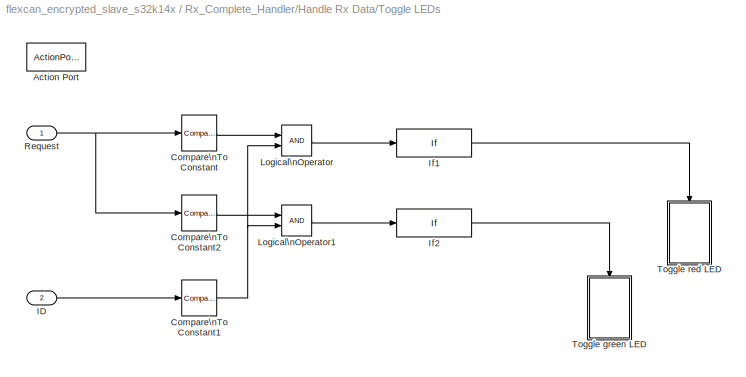
BLOCK [SubSystem] Rx_Complete_Handler/Handle Rx Data/Toggle LEDs
  Ports = [2, 0, 0, 0, 0, 0, 0, 1]
  RequestExecContextInheritance = off
  SID = 619
  Variant = off
BLOCK [ActionPort] Rx_Complete_Handler/Handle Rx Data/Toggle LEDs/Action Port
  SID = 622
BLOCK [Reference] Rx_Complete_Handler/Handle Rx Data/Toggle LEDs/Compare\nTo Constant  REF=simulink/Logic and Bit\nOperations/Compare\nTo Constant
  OutDataTypeStr = boolean
  Ports = [1, 1]
  SID = 635
  SourceBlock = simulink/Logic and Bit\nOperations/Compare\nTo Constant
  SourceProductBaseCode = SL
  SourceProductName = Simulink
  SourceType = Compare To Constant
  ZeroCross = on
  const = 0
  relop = ==
BLOCK [Reference] Rx_Complete_Handler/Handle Rx Data/Toggle LEDs/Compare\nTo Constant1  REF=simulink/Logic and Bit\nOperations/Compare\nTo Constant
  OutDataTypeStr = boolean
  Ports = [1, 1]
  SID = 637
  SourceBlock = simulink/Logic and Bit\nOperations/Compare\nTo Constant
  SourceProductBaseCode = SL
  SourceProductName = Simulink
  SourceType = Compare To Constant
  ZeroCross = on
  const = 1
  relop = ==
BLOCK [Reference] Rx_Complete_Handler/Handle Rx Data/Toggle LEDs/Compare\nTo Constant2  REF=simulink/Logic and Bit\nOperations/Compare\nTo Constant
  OutDataTypeStr = boolean
  Ports = [1, 1]
  SID = 639
  SourceBlock = simulink/Logic and Bit\nOperations/Compare\nTo Constant
  SourceProductBaseCode = SL
  SourceProductName = Simulink
  SourceType = Compare To Constant
  ZeroCross = on
  const = 1
  relop = ==
BLOCK [Inport] Rx_Complete_Handler/Handle Rx Data/Toggle LEDs/ID
  IconDisplay = Port number
  Port = 2
  SID = 621
BLOCK [If] Rx_Complete_Handler/Handle Rx Data/Toggle LEDs/If1
  IfExpression = u1 == 1
  Ports = [1, 1]
  SID = 595
  ShowElse = off
BLOCK [If] Rx_Complete_Handler/Handle Rx Data/Toggle LEDs/If2
  IfExpression = u1 == 1
  Ports = [1, 1]
  SID = 640
  ShowElse = off
BLOCK [Logic] Rx_Complete_Handler/Handle Rx Data/Toggle LEDs/Logical\nOperator
  AllPortsSameDT = off
  OutDataTypeStr = boolean
  Ports = [2, 1]
  SID = 636
BLOCK [Logic] Rx_Complete_Handler/Handle Rx Data/Toggle LEDs/Logical\nOperator1
  AllPortsSameDT = off
  OutDataTypeStr = boolean
  Ports = [2, 1]
  SID = 641
BLOCK [Inport] Rx_Complete_Handler/Handle Rx Data/Toggle LEDs/Request
  IconDisplay = Port number
  OutDataTypeStr = uint8
  SID = 620
BLOCK [SubSystem] Rx_Complete_Handler/Handle Rx Data/Toggle LEDs/Toggle green LED
  Ports = [0, 0, 0, 0, 0, 0, 0, 1]
  RequestExecContextInheritance = off
  SID = 601
  Variant = off
BLOCK [ActionPort] Rx_Complete_Handler/Handle Rx Data/Toggle LEDs/Toggle green LED/Action Port
  SID = 602
BLOCK [SubSystem] Rx_Complete_Handler/Handle Rx Data/Toggle LEDs/Toggle green LED/Chart
  ErrorFcn = Stateflow.Translate.translate
  PermitHierarchicalResolution = ExplicitOnly
  Ports = [0, 1]
  RequestExecContextInheritance = off
  SFBlockType = Chart
  SID = 603
  TreatAsAtomicUnit = on
  Variant = off
BLOCK [Outport] Rx_Complete_Handler/Handle Rx Data/Toggle LEDs/Toggle green LED/Chart/ A
  IconDisplay = Port number
  SID = 603::36
BLOCK [Demux] Rx_Complete_Handler/Handle Rx Data/Toggle LEDs/Toggle green LED/Chart/ Demux 
  Outputs = 1
  Ports = [1, 1]
  SID = 603::42
BLOCK [Ground] Rx_Complete_Handler/Handle Rx Data/Toggle LEDs/Toggle green LED/Chart/ Ground 
  SID = 603::44
BLOCK [S-Function] Rx_Complete_Handler/Handle Rx Data/Toggle LEDs/Toggle green LED/Chart/ SFunction 
  EnableBusSupport = off
  FunctionName = sf_sfun
  PortCounts = [1 2]
  Ports = [1, 2]
  SFcnIsStateOwnerBlock = off
  SFunctionDeploymentMode = off
  SID = 603::41
  Tag = Stateflow S-Function flexcan_encrypted_slave_s32k14x 1
BLOCK [Terminator] Rx_Complete_Handler/Handle Rx Data/Toggle LEDs/Toggle green LED/Chart/ Terminator 
  SID = 603::43
BLOCK [SubSystem] Rx_Complete_Handler/Handle Rx Data/Toggle LEDs/Toggle green LED/Green LED
  Ports = [1]
  RequestExecContextInheritance = off
  SID = 957
  Variant = on
BLOCK [Inport] Rx_Complete_Handler/Handle Rx Data/Toggle LEDs/Toggle green LED/Green LED/In1
  IconDisplay = Port number
  SID = 958
BLOCK [SubSystem] Rx_Complete_Handler/Handle Rx Data/Toggle LEDs/Toggle green LED/Green LED/S32K142
  Ports = [1]
  RequestExecContextInheritance = off
  SID = 959
  Variant = off
  VariantControl = VSS_S32k142
BLOCK [Reference] Rx_Complete_Handler/Handle Rx Data/Toggle LEDs/Toggle green LED/Green LED/S32K142/Green_LED  REF=mbd_s32k1xx_ec_toolbox/GPIO Blocks/Digital_Output
  Ports = [1]
  SID = 961
  SourceBlock = mbd_s32k1xx_ec_toolbox/GPIO Blocks/Digital_Output
  SourceType = gpio_s32k_output
  drive_strength = Low
  gpio_pin = PTD16: [PTD16 | Port D I/O]
  init_val = Low
BLOCK [Inport] Rx_Complete_Handler/Handle Rx Data/Toggle LEDs/Toggle green LED/Green LED/S32K142/In1
  IconDisplay = Port number
  SID = 960
BLOCK [SubSystem] Rx_Complete_Handler/Handle Rx Data/Toggle LEDs/Toggle green LED/Green LED/S32K144
  Ports = [1]
  RequestExecContextInheritance = off
  SID = 962
  Variant = off
  VariantControl = VSS_S32k144
BLOCK [Reference] Rx_Complete_Handler/Handle Rx Data/Toggle LEDs/Toggle green LED/Green LED/S32K144/Green_LED  REF=mbd_s32k1xx_ec_toolbox/GPIO Blocks/Digital_Output
  Ports = [1]
  SID = 964
  SourceBlock = mbd_s32k1xx_ec_toolbox/GPIO Blocks/Digital_Output
  SourceType = gpio_s32k_output
  drive_strength = Low
  gpio_pin = PTD16: [PTD16 | Port D I/O]
  init_val = Low
BLOCK [Inport] Rx_Complete_Handler/Handle Rx Data/Toggle LEDs/Toggle green LED/Green LED/S32K144/In1
  IconDisplay = Port number
  SID = 963
BLOCK [Logic] Rx_Complete_Handler/Handle Rx Data/Toggle LEDs/Toggle green LED/Green LED/S32K144/Logical\nOperator
  AllPortsSameDT = off
  Operator = NOT
  OutDataTypeStr = boolean
  Ports = [1, 1]
  SID = 965
BLOCK [SubSystem] Rx_Complete_Handler/Handle Rx Data/Toggle LEDs/Toggle green LED/Green LED/S32K146
  Ports = [1]
  RequestExecContextInheritance = off
  SID = 966
  Variant = off
  VariantControl = VSS_S32k146
BLOCK [Reference] Rx_Complete_Handler/Handle Rx Data/Toggle LEDs/Toggle green LED/Green LED/S32K146/Green_LED  REF=mbd_s32k1xx_ec_toolbox/GPIO Blocks/Digital_Output
  Ports = [1]
  SID = 968
  SourceBlock = mbd_s32k1xx_ec_toolbox/GPIO Blocks/Digital_Output
  SourceType = gpio_s32k_output
  drive_strength = Low
  gpio_pin = PTD16: [PTD16 | Port D I/O]
  init_val = Low
BLOCK [Inport] Rx_Complete_Handler/Handle Rx Data/Toggle LEDs/Toggle green LED/Green LED/S32K146/In1
  IconDisplay = Port number
  SID = 967
BLOCK [SubSystem] Rx_Complete_Handler/Handle Rx Data/Toggle LEDs/Toggle green LED/Green LED/S32K148
  Ports = [1]
  RequestExecContextInheritance = off
  SID = 969
  Variant = off
  VariantControl = VSS_S32k148
BLOCK [Reference] Rx_Complete_Handler/Handle Rx Data/Toggle LEDs/Toggle green LED/Green LED/S32K148/Green_LED  REF=mbd_s32k1xx_ec_toolbox/GPIO Blocks/Digital_Output
  Ports = [1]
  SID = 971
  SourceBlock = mbd_s32k1xx_ec_toolbox/GPIO Blocks/Digital_Output
  SourceType = gpio_s32k_output
  drive_strength = Low
  gpio_pin = PTE22: [PTE22 | Port E I/O]
  init_val = Low
BLOCK [Inport] Rx_Complete_Handler/Handle Rx Data/Toggle LEDs/Toggle green LED/Green LED/S32K148/In1
  IconDisplay = Port number
  SID = 970
BLOCK [SubSystem] Rx_Complete_Handler/Handle Rx Data/Toggle LEDs/Toggle red LED
  Ports = [0, 0, 0, 0, 0, 0, 0, 1]
  RequestExecContextInheritance = off
  SID = 599
  Variant = off
BLOCK [ActionPort] Rx_Complete_Handler/Handle Rx Data/Toggle LEDs/Toggle red LED/Action Port
  SID = 600
BLOCK [SubSystem] Rx_Complete_Handler/Handle Rx Data/Toggle LEDs/Toggle red LED/Chart
  ErrorFcn = Stateflow.Translate.translate
  PermitHierarchicalResolution = ExplicitOnly
  Ports = [0, 1]
  RequestExecContextInheritance = off
  SFBlockType = Chart
  SID = 1041
  TreatAsAtomicUnit = on
  Variant = off
BLOCK [Outport] Rx_Complete_Handler/Handle Rx Data/Toggle LEDs/Toggle red LED/Chart/ A
  IconDisplay = Port number
  SID = 1041::36
BLOCK [Demux] Rx_Complete_Handler/Handle Rx Data/Toggle LEDs/Toggle red LED/Chart/ Demux 
  Outputs = 1
  Ports = [1, 1]
  SID = 1041::42
BLOCK [Ground] Rx_Complete_Handler/Handle Rx Data/Toggle LEDs/Toggle red LED/Chart/ Ground 
  SID = 1041::44
BLOCK [S-Function] Rx_Complete_Handler/Handle Rx Data/Toggle LEDs/Toggle red LED/Chart/ SFunction 
  EnableBusSupport = off
  FunctionName = sf_sfun
  PortCounts = [1 2]
  Ports = [1, 2]
  SFcnIsStateOwnerBlock = off
  SFunctionDeploymentMode = off
  SID = 1041::41
  Tag = Stateflow S-Function flexcan_encrypted_slave_s32k14x 2
BLOCK [Terminator] Rx_Complete_Handler/Handle Rx Data/Toggle LEDs/Toggle red LED/Chart/ Terminator 
  SID = 1041::43
BLOCK [SubSystem] Rx_Complete_Handler/Handle Rx Data/Toggle LEDs/Toggle red LED/Red LED
  Ports = [1]
  RequestExecContextInheritance = off
  SID = 973
  Variant = on
BLOCK [Inport] Rx_Complete_Handler/Handle Rx Data/Toggle LEDs/Toggle red LED/Red LED/In1
  IconDisplay = Port number
  SID = 974
BLOCK [SubSystem] Rx_Complete_Handler/Handle Rx Data/Toggle LEDs/Toggle red LED/Red LED/S32K142
  Ports = [1]
  RequestExecContextInheritance = off
  SID = 975
  Variant = off
  VariantControl = VSS_S32k142
BLOCK [Inport] Rx_Complete_Handler/Handle Rx Data/Toggle LEDs/Toggle red LED/Red LED/S32K142/In1
  IconDisplay = Port number
  SID = 976
BLOCK [Reference] Rx_Complete_Handler/Handle Rx Data/Toggle LEDs/Toggle red LED/Red LED/S32K142/Red_LED  REF=mbd_s32k1xx_ec_toolbox/GPIO Blocks/Digital_Output
  Ports = [1]
  SID = 977
  SourceBlock = mbd_s32k1xx_ec_toolbox/GPIO Blocks/Digital_Output
  SourceType = gpio_s32k_output
  drive_strength = Low
  gpio_pin = PTD15: [PTD15 | Port D I/O]
  init_val = Low
BLOCK [SubSystem] Rx_Complete_Handler/Handle Rx Data/Toggle LEDs/Toggle red LED/Red LED/S32K144
  Ports = [1]
  RequestExecContextInheritance = off
  SID = 978
  Variant = off
  VariantControl = VSS_S32k144
BLOCK [Inport] Rx_Complete_Handler/Handle Rx Data/Toggle LEDs/Toggle red LED/Red LED/S32K144/In1
  IconDisplay = Port number
  SID = 979
BLOCK [Logic] Rx_Complete_Handler/Handle Rx Data/Toggle LEDs/Toggle red LED/Red LED/S32K144/Logical\nOperator
  AllPortsSameDT = off
  Operator = NOT
  OutDataTypeStr = boolean
  Ports = [1, 1]
  SID = 980
BLOCK [Reference] Rx_Complete_Handler/Handle Rx Data/Toggle LEDs/Toggle red LED/Red LED/S32K144/Red_LED  REF=mbd_s32k1xx_ec_toolbox/GPIO Blocks/Digital_Output
  Ports = [1]
  SID = 981
  SourceBlock = mbd_s32k1xx_ec_toolbox/GPIO Blocks/Digital_Output
  SourceType = gpio_s32k_output
  drive_strength = Low
  gpio_pin = PTD15: [PTD15 | Port D I/O]
  init_val = Low
BLOCK [SubSystem] Rx_Complete_Handler/Handle Rx Data/Toggle LEDs/Toggle red LED/Red LED/S32K146
  Ports = [1]
  RequestExecContextInheritance = off
  SID = 982
  Variant = off
  VariantControl = VSS_S32k146
BLOCK [Inport] Rx_Complete_Handler/Handle Rx Data/Toggle LEDs/Toggle red LED/Red LED/S32K146/In1
  IconDisplay = Port number
  SID = 983
BLOCK [Reference] Rx_Complete_Handler/Handle Rx Data/Toggle LEDs/Toggle red LED/Red LED/S32K146/Red_LED  REF=mbd_s32k1xx_ec_toolbox/GPIO Blocks/Digital_Output
  Ports = [1]
  SID = 984
  SourceBlock = mbd_s32k1xx_ec_toolbox/GPIO Blocks/Digital_Output
  SourceType = gpio_s32k_output
  drive_strength = Low
  gpio_pin = PTD15: [PTD15 | Port D I/O]
  init_val = Low
BLOCK [SubSystem] Rx_Complete_Handler/Handle Rx Data/Toggle LEDs/Toggle red LED/Red LED/S32K148
  Ports = [1]
  RequestExecContextInheritance = off
  SID = 985
  Variant = off
  VariantControl = VSS_S32k148
BLOCK [Inport] Rx_Complete_Handler/Handle Rx Data/Toggle LEDs/Toggle red LED/Red LED/S32K148/In1
  IconDisplay = Port number
  SID = 986
BLOCK [Reference] Rx_Complete_Handler/Handle Rx Data/Toggle LEDs/Toggle red LED/Red LED/S32K148/Red_LED  REF=mbd_s32k1xx_ec_toolbox/GPIO Blocks/Digital_Output
  Ports = [1]
  SID = 987
  SourceBlock = mbd_s32k1xx_ec_toolbox/GPIO Blocks/Digital_Output
  SourceType = gpio_s32k_output
  drive_strength = Low
  gpio_pin = PTE21: [PTE21 | Port E I/O]
  init_val = Low
BLOCK [DataStoreRead] Rx_Complete_Handler/Handle Rx Data/Use Encryption Flag\nRead
  DataStoreName = use_encryption_flag
  Ports = [0, 1]
  SID = 566
BLOCK [Merge] Rx_Complete_Handler/Handle Rx Data/Valid Data merge
  AllowUnequalInputPortWidths = on
  Ports = [2, 1]
  SID = 761
BLOCK [Inport] Rx_Complete_Handler/ID
  IconDisplay = Port number
  SID = 175
BLOCK [Inport] Rx_Complete_Handler/Length
  IconDisplay = Port number
  Port = 3
  SID = 758
BLOCK [TriggerPort] Rx_Complete_Handler/function
  Ports = []
  SID = 161
  StatesWhenEnabling = held
  TriggerType = function-call
  VariantControl = Variant
BLOCK [SubSystem] Slave Receive CAN Data Function
  Ports = [0, 0, 0, 1]
  RequestExecContextInheritance = off
  SID = 852
  TreatAsAtomicUnit = on
  Variant = off
BLOCK [Reference] Slave Receive CAN Data Function/FCAN_Receive_ID_0x2  REF=mbd_s32k1xx_ec_toolbox/Communication Blocks/CAN Blocks/FCAN_Receive
  Ports = []
  SID = 197
  SourceBlock = mbd_s32k1xx_ec_toolbox/Communication Blocks/CAN Blocks/FCAN_Receive
  SourceType = fcan_s32k_receive
  can_extended_id = off
  can_fd_enable = on
  can_id = 1
  can_instance = 0
  can_is_remote = off
  can_mb_idx = 1
  can_mode = Non-blocking
  can_msg_mask = FFFFFFFF
  can_timeout_ms = 0
  can_use_rxfifo = off
  show_adv_opts = on
BLOCK [TriggerPort] Slave Receive CAN Data Function/slave_receive_can_data
  FunctionName = slave_receive_can_data
  IsSimulinkFunction = on
  Ports = []
  SID = 853
  StatesWhenEnabling = held
  TriggerType = function-call
  VariantControl = Variant
BLOCK [SubSystem] Slave Send CAN Data Function
  Ports = [0, 0, 0, 1]
  RequestExecContextInheritance = off
  SID = 841
  TreatAsAtomicUnit = on
  Variant = off
BLOCK [Merge] Slave Send CAN Data Function/Data Merge
  AllowUnequalInputPortWidths = on
  Ports = [2, 1]
  SID = 801
BLOCK [Reference] Slave Send CAN Data Function/FCAN_Send_0x2  REF=mbd_s32k1xx_ec_toolbox/Communication Blocks/CAN Blocks/FCAN_Send
  Ports = [2]
  SID = 828
  SourceBlock = mbd_s32k1xx_ec_toolbox/Communication Blocks/CAN Blocks/FCAN_Send
  SourceType = fcan_s32k_send
  can_enable_brs = on
  can_extended_id = off
  can_fd_enable = on
  can_fd_padding = 0
  can_id = 2
  can_instance = 0
  can_is_remote = off
  can_mb_idx = 0
  can_mode = Non-blocking
  can_timeout_ms = 0
  show_adv_opts = on
BLOCK [If] Slave Send CAN Data Function/If
  IfExpression = u1 == 0
  Ports = [1, 2]
  SID = 507
BLOCK [Merge] Slave Send CAN Data Function/Length Merge
  Ports = [2, 1]
  SID = 802
BLOCK [SubSystem] Slave Send CAN Data Function/Prepare encrypted data
  Ports = [1, 2, 0, 0, 0, 0, 0, 1]
  RequestExecContextInheritance = off
  SID = 508
  Variant = off
BLOCK [ActionPort] Slave Send CAN Data Function/Prepare encrypted data/Action Port
  SID = 509
BLOCK [Reference] Slave Send CAN Data Function/Prepare encrypted data/CSEc_Encrypt  REF=mbd_s32k1xx_ec_toolbox/Core and System Blocks/CSEc Blocks/CSEc_Encrypt
  Ports = [1, 2]
  Priority = 2
  SID = 482
  SourceBlock = mbd_s32k1xx_ec_toolbox/Core and System Blocks/CSEc Blocks/CSEc_Encrypt
  SourceType = csec_s32k_encrypt
  csec_key_id = KEY_1
  csec_mode = Electronic Codebook (ECB)
  csec_timeout = 1
BLOCK [Constant] Slave Send CAN Data Function/Prepare encrypted data/Constant
  OutDataTypeStr = uint8
  SID = 799
  Value = 0
BLOCK [Outport] Slave Send CAN Data Function/Prepare encrypted data/Data
  IconDisplay = Port number
  SID = 772
BLOCK [DataTypeConversion] Slave Send CAN Data Function/Prepare encrypted data/Data Type Conversion
  OutDataTypeStr = uint32
  RndMeth = Floor
  SID = 490
  SaturateOnIntegerOverflow = off
BLOCK [DataTypeConversion] Slave Send CAN Data Function/Prepare encrypted data/Data Type Conversion1
  OutDataTypeStr = uint8
  RndMeth = Floor
  SID = 832
  SaturateOnIntegerOverflow = off
BLOCK [Outport] Slave Send CAN Data Function/Prepare encrypted data/Length
  IconDisplay = Port number
  Port = 2
  SID = 773
BLOCK [Constant] Slave Send CAN Data Function/Prepare encrypted data/Plain text
  OutDataTypeStr = uint8
  SID = 488
  Value = zeros(1, 15)
BLOCK [Inport] Slave Send CAN Data Function/Prepare encrypted data/Request
  IconDisplay = Port number
  SID = 781
BLOCK [Switch] Slave Send CAN Data Function/Prepare encrypted data/Switch
  Criteria = u2 ~= 0
  InputSameDT = off
  SID = 798
  SaturateOnIntegerOverflow = off
BLOCK [Concatenate] Slave Send CAN Data Function/Prepare encrypted data/Vector\nConcatenate
  Ports = [2, 1]
  Priority = 1
  SID = 803
BLOCK [Width] Slave Send CAN Data Function/Prepare encrypted data/Width
  DataType = uint8
  SID = 754
BLOCK [SubSystem] Slave Send CAN Data Function/Prepare unencrypted data
  Ports = [1, 2, 0, 0, 0, 0, 0, 1]
  RequestExecContextInheritance = off
  SID = 510
  Variant = off
BLOCK [ActionPort] Slave Send CAN Data Function/Prepare unencrypted data/Action Port
  SID = 511
BLOCK [Outport] Slave Send CAN Data Function/Prepare unencrypted data/Data
  IconDisplay = Port number
  SID = 769
BLOCK [DataTypeConversion] Slave Send CAN Data Function/Prepare unencrypted data/Data Type Conversion
  OutDataTypeStr = uint8
  RndMeth = Floor
  SID = 831
  SaturateOnIntegerOverflow = off
BLOCK [DataTypeConversion] Slave Send CAN Data Function/Prepare unencrypted data/Data Type Conversion1
  OutDataTypeStr = uint8
  RndMeth = Floor
  SID = 849
  SaturateOnIntegerOverflow = off
BLOCK [Outport] Slave Send CAN Data Function/Prepare unencrypted data/Length
  IconDisplay = Port number
  Port = 2
  SID = 770
BLOCK [Inport] Slave Send CAN Data Function/Prepare unencrypted data/Request
  IconDisplay = Port number
  SID = 787
BLOCK [Width] Slave Send CAN Data Function/Prepare unencrypted data/Width
  DataType = uint8
  SID = 848
BLOCK [ArgIn] Slave Send CAN Data Function/Request
  ArgumentName = Request
  DisableCoverage = on
  OutDataTypeStr = uint8
  SID = 843
BLOCK [DataStoreRead] Slave Send CAN Data Function/Use Encryption Flag\nRead
  DataStoreName = use_encryption_flag
  Ports = [0, 1]
  SID = 506
BLOCK [TriggerPort] Slave Send CAN Data Function/slave_send_can_data
  FunctionName = slave_send_can_data
  IsSimulinkFunction = on
  Ports = []
  SID = 842
  StatesWhenEnabling = held
  TriggerType = function-call
  VariantControl = Variant
BLOCK [Terminator] Terminator
  SID = 473
BLOCK [Terminator] Terminator2
  SID = 475
BLOCK [DataStoreMemory] Use Encryption Flag\nMemory
  DataStoreName = use_encryption_flag
  ReadBeforeWriteMsg = warning
  SID = 505
  ShowAdditionalParam = off
  WriteAfterReadMsg = warning
  WriteAfterWriteMsg = warning
ANNOTATION (root): Flags
ANNOTATION (root): Handle FlexCAN events
ANNOTATION (root): Handle button events
ANNOTATION (root): Initialization sequence
ANNOTATION (root): Peripherals configuration
ANNOTATION (root): Simulink functions
ANNOTATION Button_SW2_Handler\n\n/Toggle encrypted mode/Blue LED: \n \n 1) Add Subsystem or Model blocks as valid variant choices. \n 2) You cannot connect blocks at this level. At simulation, connectivity is automatically \n determined, based on the active variant and port name matching.
ANNOTATION Button_SW3_ISR_Handler/Toggle encrypted mode/Blue LED: \n \n 1) Add Subsystem or Model blocks as valid variant choices. \n 2) You cannot connect blocks at this level. At simulation, connectivity is automatically \n determined, based on the active variant and port name matching.
ANNOTATION Initialize model/Turn off LEDs/Blue LED off/Blue LED: \n \n 1) Add Subsystem or Model blocks as valid variant choices. \n 2) You cannot connect blocks at this level. At simulation, connectivity is automatically \n determined, based on the active variant and port name matching.
ANNOTATION Initialize model/Turn off LEDs/Green LED off/Green LED: \n \n 1) Add Subsystem or Model blocks as valid variant choices. \n 2) You cannot connect blocks at this level. At simulation, connectivity is automatically \n determined, based on the active variant and port name matching.
ANNOTATION Initialize model/Turn off LEDs/Red LED off/Red LED: \n \n 1) Add Subsystem or Model blocks as valid variant choices. \n 2) You cannot connect blocks at this level. At simulation, connectivity is automatically \n determined, based on the active variant and port name matching.
ANNOTATION Rx_Complete_Handler/Handle Rx Data/Toggle LEDs/Toggle green LED/Green LED: \n \n 1) Add Subsystem or Model blocks as valid variant choices. \n 2) You cannot connect blocks at this level. At simulation, connectivity is automatically \n determined, based on the active variant and port name matching.
ANNOTATION Rx_Complete_Handler/Handle Rx Data/Toggle LEDs/Toggle red LED/Red LED: \n \n 1) Add Subsystem or Model blocks as valid variant choices. \n 2) You cannot connect blocks at this level. At simulation, connectivity is automatically \n determined, based on the active variant and port name matching.
LINE Button_SW2_Handler\n\n/Button_SW3_Input:1 -> Button_SW2_Handler\n\n/If:1
LINE Button_SW2_Handler\n\n/If:1 -> Button_SW2_Handler\n\n/Toggle encrypted mode:ifaction
LINE Button_SW2_Handler\n\n/If:2 -> Button_SW2_Handler\n\n/Send CAN data:ifaction
LINE Button_SW2_Handler\n\n/SW2_Input:1 -> Button_SW2_Handler\n\n/Terminator:1
LINE Button_SW2_Handler\n\n/Send CAN data/Constant:1 -> Button_SW2_Handler\n\n/Send CAN data/Function Caller:1
LINE Button_SW2_Handler\n\n/Toggle encrypted mode/Blue LED/S32K142/In1:1 -> Button_SW2_Handler\n\n/Toggle encrypted mode/Blue LED/S32K142/Blue_LED:1
LINE Button_SW2_Handler\n\n/Toggle encrypted mode/Blue LED/S32K144/In1:1 -> Button_SW2_Handler\n\n/Toggle encrypted mode/Blue LED/S32K144/Logical\nOperator:1
LINE Button_SW2_Handler\n\n/Toggle encrypted mode/Blue LED/S32K144/Logical\nOperator:1 -> Button_SW2_Handler\n\n/Toggle encrypted mode/Blue LED/S32K144/Blue_LED:1
LINE Button_SW2_Handler\n\n/Toggle encrypted mode/Blue LED/S32K146/In1:1 -> Button_SW2_Handler\n\n/Toggle encrypted mode/Blue LED/S32K146/Blue_LED:1
LINE Button_SW2_Handler\n\n/Toggle encrypted mode/Blue LED/S32K148/In1:1 -> Button_SW2_Handler\n\n/Toggle encrypted mode/Blue LED/S32K148/Blue_LED:1
NET Button_SW2_Handler\n\n/Toggle encrypted mode/Logical\nOperator:1 -> Button_SW2_Handler\n\n/Toggle encrypted mode/Blue LED:1, Button_SW2_Handler\n\n/Toggle encrypted mode/Use Encryption Flag\nWrite:1
LINE Button_SW2_Handler\n\n/Toggle encrypted mode/Use Encryption Flag\nRead:1 -> Button_SW2_Handler\n\n/Toggle encrypted mode/Logical\nOperator:1
LINE Button_SW2_ISR:1 -> Button_SW2_Handler\n\n:trigger
LINE Button_SW3_ISR:1 -> Button_SW3_ISR_Handler:trigger
LINE Button_SW3_ISR_Handler/Button_SW3_Input:1 -> Button_SW3_ISR_Handler/Terminator:1
LINE Button_SW3_ISR_Handler/Digital_SW2_Input:1 -> Button_SW3_ISR_Handler/If:1
LINE Button_SW3_ISR_Handler/If:1 -> Button_SW3_ISR_Handler/Toggle encrypted mode:ifaction
LINE Button_SW3_ISR_Handler/If:2 -> Button_SW3_ISR_Handler/Send CAN data:ifaction
LINE Button_SW3_ISR_Handler/Send CAN data/Constant:1 -> Button_SW3_ISR_Handler/Send CAN data/Function Caller:1
LINE Button_SW3_ISR_Handler/Toggle encrypted mode/Blue LED/S32K142/In1:1 -> Button_SW3_ISR_Handler/Toggle encrypted mode/Blue LED/S32K142/Blue_LED:1
LINE Button_SW3_ISR_Handler/Toggle encrypted mode/Blue LED/S32K144/In1:1 -> Button_SW3_ISR_Handler/Toggle encrypted mode/Blue LED/S32K144/Logical\nOperator:1
LINE Button_SW3_ISR_Handler/Toggle encrypted mode/Blue LED/S32K144/Logical\nOperator:1 -> Button_SW3_ISR_Handler/Toggle encrypted mode/Blue LED/S32K144/Blue_LED:1
LINE Button_SW3_ISR_Handler/Toggle encrypted mode/Blue LED/S32K146/In1:1 -> Button_SW3_ISR_Handler/Toggle encrypted mode/Blue LED/S32K146/Blue_LED:1
LINE Button_SW3_ISR_Handler/Toggle encrypted mode/Blue LED/S32K148/In1:1 -> Button_SW3_ISR_Handler/Toggle encrypted mode/Blue LED/S32K148/Blue_LED:1
NET Button_SW3_ISR_Handler/Toggle encrypted mode/Logical\nOperator:1 -> Button_SW3_ISR_Handler/Toggle encrypted mode/Blue LED:1, Button_SW3_ISR_Handler/Toggle encrypted mode/Use Encryption Flag\nWrite:1
LINE Button_SW3_ISR_Handler/Toggle encrypted mode/Use Encryption Flag\nRead:1 -> Button_SW3_ISR_Handler/Toggle encrypted mode/Logical\nOperator:1
LINE FCAN_Rx_Complete_Isr:1 -> Rx_Complete_Handler:trigger
LINE FCAN_Rx_Complete_Isr:2 -> Terminator2:1
LINE FCAN_Rx_Complete_Isr:3 -> Rx_Complete_Handler:1
LINE FCAN_Rx_Complete_Isr:4 -> Rx_Complete_Handler:2
LINE FCAN_Rx_Complete_Isr:5 -> Rx_Complete_Handler:3
LINE FCAN_Rx_Complete_Isr:6 -> Terminator:1
LINE If:1 -> Initialize model:ifaction
LINE Init Flag\nRead:1 -> If:1
LINE Initialize model/Constant:1 -> Initialize model/Init Flag\nWrite:1
LINE Initialize model/Turn off LEDs/Blue LED off/Blue LED/S32K142/In1:1 -> Initialize model/Turn off LEDs/Blue LED off/Blue LED/S32K142/Blue_LED:1
LINE Initialize model/Turn off LEDs/Blue LED off/Blue LED/S32K144/In1:1 -> Initialize model/Turn off LEDs/Blue LED off/Blue LED/S32K144/Logical\nOperator:1
LINE Initialize model/Turn off LEDs/Blue LED off/Blue LED/S32K144/Logical\nOperator:1 -> Initialize model/Turn off LEDs/Blue LED off/Blue LED/S32K144/Blue_LED:1
LINE Initialize model/Turn off LEDs/Blue LED off/Blue LED/S32K146/In1:1 -> Initialize model/Turn off LEDs/Blue LED off/Blue LED/S32K146/Blue_LED:1
LINE Initialize model/Turn off LEDs/Blue LED off/Blue LED/S32K148/In1:1 -> Initialize model/Turn off LEDs/Blue LED off/Blue LED/S32K148/Blue_LED:1
LINE Initialize model/Turn off LEDs/Blue LED off/Constant:1 -> Initialize model/Turn off LEDs/Blue LED off/Blue LED:1
LINE Initialize model/Turn off LEDs/Green LED off/Constant:1 -> Initialize model/Turn off LEDs/Green LED off/Green LED:1
LINE Initialize model/Turn off LEDs/Green LED off/Green LED/S32K142/In1:1 -> Initialize model/Turn off LEDs/Green LED off/Green LED/S32K142/Green_LED:1
LINE Initialize model/Turn off LEDs/Green LED off/Green LED/S32K144/In1:1 -> Initialize model/Turn off LEDs/Green LED off/Green LED/S32K144/Logical\nOperator:1
LINE Initialize model/Turn off LEDs/Green LED off/Green LED/S32K144/Logical\nOperator:1 -> Initialize model/Turn off LEDs/Green LED off/Green LED/S32K144/Green_LED:1
LINE Initialize model/Turn off LEDs/Green LED off/Green LED/S32K146/In1:1 -> Initialize model/Turn off LEDs/Green LED off/Green LED/S32K146/Green_LED:1
LINE Initialize model/Turn off LEDs/Green LED off/Green LED/S32K148/In1:1 -> Initialize model/Turn off LEDs/Green LED off/Green LED/S32K148/Green_LED:1
LINE Initialize model/Turn off LEDs/Red LED off/Constant:1 -> Initialize model/Turn off LEDs/Red LED off/Red LED:1
LINE Initialize model/Turn off LEDs/Red LED off/Red LED/S32K142/In1:1 -> Initialize model/Turn off LEDs/Red LED off/Red LED/S32K142/Red_LED:1
LINE Initialize model/Turn off LEDs/Red LED off/Red LED/S32K144/In1:1 -> Initialize model/Turn off LEDs/Red LED off/Red LED/S32K144/Logical\nOperator:1
LINE Initialize model/Turn off LEDs/Red LED off/Red LED/S32K144/Logical\nOperator:1 -> Initialize model/Turn off LEDs/Red LED off/Red LED/S32K144/Red_LED:1
LINE Initialize model/Turn off LEDs/Red LED off/Red LED/S32K146/In1:1 -> Initialize model/Turn off LEDs/Red LED off/Red LED/S32K146/Red_LED:1
LINE Initialize model/Turn off LEDs/Red LED off/Red LED/S32K148/In1:1 -> Initialize model/Turn off LEDs/Red LED off/Red LED/S32K148/Red_LED:1
LINE Rx_Complete_Handler/Data:1 -> Rx_Complete_Handler/Handle Rx Data:2
NET Rx_Complete_Handler/Handle Rx Data/Data:1 -> Rx_Complete_Handler/Handle Rx Data/Decrypt data:1, Rx_Complete_Handler/Handle Rx Data/Pass data:1
LINE Rx_Complete_Handler/Handle Rx Data/Decrypt data/Cipher data:1 -> Rx_Complete_Handler/Handle Rx Data/Decrypt data/Decrypt data:1
LINE Rx_Complete_Handler/Handle Rx Data/Decrypt data/Decrypt data/CSEc_Decrypt:1 -> Rx_Complete_Handler/Handle Rx Data/Decrypt data/Decrypt data/Data Type Conversion:1
LINE Rx_Complete_Handler/Handle Rx Data/Decrypt data/Decrypt data/CSEc_Decrypt:2 -> Rx_Complete_Handler/Handle Rx Data/Decrypt data/Decrypt data/Decrypt operation succeeded:1
LINE Rx_Complete_Handler/Handle Rx Data/Decrypt data/Decrypt data/Data Type Conversion:1 -> Rx_Complete_Handler/Handle Rx Data/Decrypt data/Decrypt data/If:1
LINE Rx_Complete_Handler/Handle Rx Data/Decrypt data/Decrypt data/Decrypt operation failed/Constant:1 -> Rx_Complete_Handler/Handle Rx Data/Decrypt data/Decrypt data/Decrypt operation failed/Plain data:1
LINE Rx_Complete_Handler/Handle Rx Data/Decrypt data/Decrypt data/Decrypt operation failed/Invalid data:1 -> Rx_Complete_Handler/Handle Rx Data/Decrypt data/Decrypt data/Decrypt operation failed/Valid data:1
LINE Rx_Complete_Handler/Handle Rx Data/Decrypt data/Decrypt data/Decrypt operation failed:1 -> Rx_Complete_Handler/Handle Rx Data/Decrypt data/Decrypt data/Merge:2
LINE Rx_Complete_Handler/Handle Rx Data/Decrypt data/Decrypt data/Decrypt operation failed:2 -> Rx_Complete_Handler/Handle Rx Data/Decrypt data/Decrypt data/Merge1:2
LINE Rx_Complete_Handler/Handle Rx Data/Decrypt data/Decrypt data/Decrypt operation succeeded/In1:1 -> Rx_Complete_Handler/Handle Rx Data/Decrypt data/Decrypt data/Decrypt operation succeeded/Plain data:1
LINE Rx_Complete_Handler/Handle Rx Data/Decrypt data/Decrypt data/Decrypt operation succeeded/Invalid data:1 -> Rx_Complete_Handler/Handle Rx Data/Decrypt data/Decrypt data/Decrypt operation succeeded/Valid data:1
LINE Rx_Complete_Handler/Handle Rx Data/Decrypt data/Decrypt data/Decrypt operation succeeded:1 -> Rx_Complete_Handler/Handle Rx Data/Decrypt data/Decrypt data/Merge:1
LINE Rx_Complete_Handler/Handle Rx Data/Decrypt data/Decrypt data/Decrypt operation succeeded:2 -> Rx_Complete_Handler/Handle Rx Data/Decrypt data/Decrypt data/Merge1:1
LINE Rx_Complete_Handler/Handle Rx Data/Decrypt data/Decrypt data/If:1 -> Rx_Complete_Handler/Handle Rx Data/Decrypt data/Decrypt data/Decrypt operation succeeded:ifaction
LINE Rx_Complete_Handler/Handle Rx Data/Decrypt data/Decrypt data/If:2 -> Rx_Complete_Handler/Handle Rx Data/Decrypt data/Decrypt data/Decrypt operation failed:ifaction
LINE Rx_Complete_Handler/Handle Rx Data/Decrypt data/Decrypt data/In1:1 -> Rx_Complete_Handler/Handle Rx Data/Decrypt data/Decrypt data/CSEc_Decrypt:1
LINE Rx_Complete_Handler/Handle Rx Data/Decrypt data/Decrypt data/Merge1:1 -> Rx_Complete_Handler/Handle Rx Data/Decrypt data/Decrypt data/Plain data:1
LINE Rx_Complete_Handler/Handle Rx Data/Decrypt data/Decrypt data/Merge:1 -> Rx_Complete_Handler/Handle Rx Data/Decrypt data/Decrypt data/Valid data:1
LINE Rx_Complete_Handler/Handle Rx Data/Decrypt data/Decrypt data:1 -> Rx_Complete_Handler/Handle Rx Data/Decrypt data/Merge Valid data:1
LINE Rx_Complete_Handler/Handle Rx Data/Decrypt data/Decrypt data:2 -> Rx_Complete_Handler/Handle Rx Data/Decrypt data/Merge Plain data:1
LINE Rx_Complete_Handler/Handle Rx Data/Decrypt data/If:1 -> Rx_Complete_Handler/Handle Rx Data/Decrypt data/Decrypt data:ifaction
LINE Rx_Complete_Handler/Handle Rx Data/Decrypt data/If:2 -> Rx_Complete_Handler/Handle Rx Data/Decrypt data/Invalid data:ifaction
LINE Rx_Complete_Handler/Handle Rx Data/Decrypt data/Invalid data/Constant1:1 -> Rx_Complete_Handler/Handle Rx Data/Decrypt data/Invalid data/Plain data:1
LINE Rx_Complete_Handler/Handle Rx Data/Decrypt data/Invalid data/Invalid data:1 -> Rx_Complete_Handler/Handle Rx Data/Decrypt data/Invalid data/Valid data:1
LINE Rx_Complete_Handler/Handle Rx Data/Decrypt data/Invalid data:1 -> Rx_Complete_Handler/Handle Rx Data/Decrypt data/Merge Valid data:2
LINE Rx_Complete_Handler/Handle Rx Data/Decrypt data/Invalid data:2 -> Rx_Complete_Handler/Handle Rx Data/Decrypt data/Merge Plain data:2
LINE Rx_Complete_Handler/Handle Rx Data/Decrypt data/Length:1 -> Rx_Complete_Handler/Handle Rx Data/Decrypt data/If:1
LINE Rx_Complete_Handler/Handle Rx Data/Decrypt data/Merge Plain data:1 -> Rx_Complete_Handler/Handle Rx Data/Decrypt data/Plain data:1
LINE Rx_Complete_Handler/Handle Rx Data/Decrypt data/Merge Valid data:1 -> Rx_Complete_Handler/Handle Rx Data/Decrypt data/Valid data:1
LINE Rx_Complete_Handler/Handle Rx Data/Decrypt data:1 -> Rx_Complete_Handler/Handle Rx Data/Valid Data merge:1
LINE Rx_Complete_Handler/Handle Rx Data/Decrypt data:2 -> Rx_Complete_Handler/Handle Rx Data/Plain Data Merge:1
LINE Rx_Complete_Handler/Handle Rx Data/Extract request:1 -> Rx_Complete_Handler/Handle Rx Data/Toggle LEDs:1
LINE Rx_Complete_Handler/Handle Rx Data/ID:1 -> Rx_Complete_Handler/Handle Rx Data/Toggle LEDs:2
LINE Rx_Complete_Handler/Handle Rx Data/If1:1 -> Rx_Complete_Handler/Handle Rx Data/Toggle LEDs:ifaction
LINE Rx_Complete_Handler/Handle Rx Data/If:1 -> Rx_Complete_Handler/Handle Rx Data/Decrypt data:ifaction
LINE Rx_Complete_Handler/Handle Rx Data/If:2 -> Rx_Complete_Handler/Handle Rx Data/Pass data:ifaction
LINE Rx_Complete_Handler/Handle Rx Data/Length:1 -> Rx_Complete_Handler/Handle Rx Data/Decrypt data:2
LINE Rx_Complete_Handler/Handle Rx Data/Pass data/Constant:1 -> Rx_Complete_Handler/Handle Rx Data/Pass data/Valid data:1
LINE Rx_Complete_Handler/Handle Rx Data/Pass data/Data:1 -> Rx_Complete_Handler/Handle Rx Data/Pass data/Plain Data:1
LINE Rx_Complete_Handler/Handle Rx Data/Pass data:1 -> Rx_Complete_Handler/Handle Rx Data/Valid Data merge:2
LINE Rx_Complete_Handler/Handle Rx Data/Pass data:2 -> Rx_Complete_Handler/Handle Rx Data/Plain Data Merge:2
LINE Rx_Complete_Handler/Handle Rx Data/Plain Data Merge:1 -> Rx_Complete_Handler/Handle Rx Data/Extract request:1
NET Rx_Complete_Handler/Handle Rx Data/Toggle LEDs/Compare\nTo Constant1:1 -> Rx_Complete_Handler/Handle Rx Data/Toggle LEDs/Logical\nOperator1:2, Rx_Complete_Handler/Handle Rx Data/Toggle LEDs/Logical\nOperator:2
LINE Rx_Complete_Handler/Handle Rx Data/Toggle LEDs/Compare\nTo Constant2:1 -> Rx_Complete_Handler/Handle Rx Data/Toggle LEDs/Logical\nOperator1:1
LINE Rx_Complete_Handler/Handle Rx Data/Toggle LEDs/Compare\nTo Constant:1 -> Rx_Complete_Handler/Handle Rx Data/Toggle LEDs/Logical\nOperator:1
LINE Rx_Complete_Handler/Handle Rx Data/Toggle LEDs/ID:1 -> Rx_Complete_Handler/Handle Rx Data/Toggle LEDs/Compare\nTo Constant1:1
LINE Rx_Complete_Handler/Handle Rx Data/Toggle LEDs/If1:1 -> Rx_Complete_Handler/Handle Rx Data/Toggle LEDs/Toggle red LED:ifaction
LINE Rx_Complete_Handler/Handle Rx Data/Toggle LEDs/If2:1 -> Rx_Complete_Handler/Handle Rx Data/Toggle LEDs/Toggle green LED:ifaction
LINE Rx_Complete_Handler/Handle Rx Data/Toggle LEDs/Logical\nOperator1:1 -> Rx_Complete_Handler/Handle Rx Data/Toggle LEDs/If2:1
LINE Rx_Complete_Handler/Handle Rx Data/Toggle LEDs/Logical\nOperator:1 -> Rx_Complete_Handler/Handle Rx Data/Toggle LEDs/If1:1
NET Rx_Complete_Handler/Handle Rx Data/Toggle LEDs/Request:1 -> Rx_Complete_Handler/Handle Rx Data/Toggle LEDs/Compare\nTo Constant2:1, Rx_Complete_Handler/Handle Rx Data/Toggle LEDs/Compare\nTo Constant:1
LINE Rx_Complete_Handler/Handle Rx Data/Toggle LEDs/Toggle green LED/Chart/ Demux :1 -> Rx_Complete_Handler/Handle Rx Data/Toggle LEDs/Toggle green LED/Chart/ Terminator :1
LINE Rx_Complete_Handler/Handle Rx Data/Toggle LEDs/Toggle green LED/Chart/ Ground :1 -> Rx_Complete_Handler/Handle Rx Data/Toggle LEDs/Toggle green LED/Chart/ SFunction :1
LINE Rx_Complete_Handler/Handle Rx Data/Toggle LEDs/Toggle green LED/Chart/ SFunction :1 -> Rx_Complete_Handler/Handle Rx Data/Toggle LEDs/Toggle green LED/Chart/ Demux :1
LINE Rx_Complete_Handler/Handle Rx Data/Toggle LEDs/Toggle green LED/Chart/ SFunction :2 -> Rx_Complete_Handler/Handle Rx Data/Toggle LEDs/Toggle green LED/Chart/ A:1
LINE Rx_Complete_Handler/Handle Rx Data/Toggle LEDs/Toggle green LED/Chart:1 -> Rx_Complete_Handler/Handle Rx Data/Toggle LEDs/Toggle green LED/Green LED:1
LINE Rx_Complete_Handler/Handle Rx Data/Toggle LEDs/Toggle green LED/Green LED/S32K142/In1:1 -> Rx_Complete_Handler/Handle Rx Data/Toggle LEDs/Toggle green LED/Green LED/S32K142/Green_LED:1
LINE Rx_Complete_Handler/Handle Rx Data/Toggle LEDs/Toggle green LED/Green LED/S32K144/In1:1 -> Rx_Complete_Handler/Handle Rx Data/Toggle LEDs/Toggle green LED/Green LED/S32K144/Logical\nOperator:1
LINE Rx_Complete_Handler/Handle Rx Data/Toggle LEDs/Toggle green LED/Green LED/S32K144/Logical\nOperator:1 -> Rx_Complete_Handler/Handle Rx Data/Toggle LEDs/Toggle green LED/Green LED/S32K144/Green_LED:1
LINE Rx_Complete_Handler/Handle Rx Data/Toggle LEDs/Toggle green LED/Green LED/S32K146/In1:1 -> Rx_Complete_Handler/Handle Rx Data/Toggle LEDs/Toggle green LED/Green LED/S32K146/Green_LED:1
LINE Rx_Complete_Handler/Handle Rx Data/Toggle LEDs/Toggle green LED/Green LED/S32K148/In1:1 -> Rx_Complete_Handler/Handle Rx Data/Toggle LEDs/Toggle green LED/Green LED/S32K148/Green_LED:1
LINE Rx_Complete_Handler/Handle Rx Data/Toggle LEDs/Toggle red LED/Chart/ Demux :1 -> Rx_Complete_Handler/Handle Rx Data/Toggle LEDs/Toggle red LED/Chart/ Terminator :1
LINE Rx_Complete_Handler/Handle Rx Data/Toggle LEDs/Toggle red LED/Chart/ Ground :1 -> Rx_Complete_Handler/Handle Rx Data/Toggle LEDs/Toggle red LED/Chart/ SFunction :1
LINE Rx_Complete_Handler/Handle Rx Data/Toggle LEDs/Toggle red LED/Chart/ SFunction :1 -> Rx_Complete_Handler/Handle Rx Data/Toggle LEDs/Toggle red LED/Chart/ Demux :1
LINE Rx_Complete_Handler/Handle Rx Data/Toggle LEDs/Toggle red LED/Chart/ SFunction :2 -> Rx_Complete_Handler/Handle Rx Data/Toggle LEDs/Toggle red LED/Chart/ A:1
LINE Rx_Complete_Handler/Handle Rx Data/Toggle LEDs/Toggle red LED/Chart:1 -> Rx_Complete_Handler/Handle Rx Data/Toggle LEDs/Toggle red LED/Red LED:1
LINE Rx_Complete_Handler/Handle Rx Data/Toggle LEDs/Toggle red LED/Red LED/S32K142/In1:1 -> Rx_Complete_Handler/Handle Rx Data/Toggle LEDs/Toggle red LED/Red LED/S32K142/Red_LED:1
LINE Rx_Complete_Handler/Handle Rx Data/Toggle LEDs/Toggle red LED/Red LED/S32K144/In1:1 -> Rx_Complete_Handler/Handle Rx Data/Toggle LEDs/Toggle red LED/Red LED/S32K144/Logical\nOperator:1
LINE Rx_Complete_Handler/Handle Rx Data/Toggle LEDs/Toggle red LED/Red LED/S32K144/Logical\nOperator:1 -> Rx_Complete_Handler/Handle Rx Data/Toggle LEDs/Toggle red LED/Red LED/S32K144/Red_LED:1
LINE Rx_Complete_Handler/Handle Rx Data/Toggle LEDs/Toggle red LED/Red LED/S32K146/In1:1 -> Rx_Complete_Handler/Handle Rx Data/Toggle LEDs/Toggle red LED/Red LED/S32K146/Red_LED:1
LINE Rx_Complete_Handler/Handle Rx Data/Toggle LEDs/Toggle red LED/Red LED/S32K148/In1:1 -> Rx_Complete_Handler/Handle Rx Data/Toggle LEDs/Toggle red LED/Red LED/S32K148/Red_LED:1
LINE Rx_Complete_Handler/Handle Rx Data/Use Encryption Flag\nRead:1 -> Rx_Complete_Handler/Handle Rx Data/If:1
LINE Rx_Complete_Handler/Handle Rx Data/Valid Data merge:1 -> Rx_Complete_Handler/Handle Rx Data/If1:1
LINE Rx_Complete_Handler/ID:1 -> Rx_Complete_Handler/Handle Rx Data:1
LINE Rx_Complete_Handler/Length:1 -> Rx_Complete_Handler/Handle Rx Data:3
LINE Slave Send CAN Data Function/Data Merge:1 -> Slave Send CAN Data Function/FCAN_Send_0x2:1
LINE Slave Send CAN Data Function/If:1 -> Slave Send CAN Data Function/Prepare unencrypted data:ifaction
LINE Slave Send CAN Data Function/If:2 -> Slave Send CAN Data Function/Prepare encrypted data:ifaction
LINE Slave Send CAN Data Function/Length Merge:1 -> Slave Send CAN Data Function/FCAN_Send_0x2:2
LINE Slave Send CAN Data Function/Prepare encrypted data/CSEc_Encrypt:1 -> Slave Send CAN Data Function/Prepare encrypted data/Data Type Conversion:1
NET Slave Send CAN Data Function/Prepare encrypted data/CSEc_Encrypt:2 -> Slave Send CAN Data Function/Prepare encrypted data/Data Type Conversion1:1, Slave Send CAN Data Function/Prepare encrypted data/Width:1
LINE Slave Send CAN Data Function/Prepare encrypted data/Constant:1 -> Slave Send CAN Data Function/Prepare encrypted data/Switch:1
LINE Slave Send CAN Data Function/Prepare encrypted data/Data Type Conversion1:1 -> Slave Send CAN Data Function/Prepare encrypted data/Data:1
LINE Slave Send CAN Data Function/Prepare encrypted data/Data Type Conversion:1 -> Slave Send CAN Data Function/Prepare encrypted data/Switch:2
LINE Slave Send CAN Data Function/Prepare encrypted data/Plain text:1 -> Slave Send CAN Data Function/Prepare encrypted data/Vector\nConcatenate:2
LINE Slave Send CAN Data Function/Prepare encrypted data/Request:1 -> Slave Send CAN Data Function/Prepare encrypted data/Vector\nConcatenate:1
LINE Slave Send CAN Data Function/Prepare encrypted data/Switch:1 -> Slave Send CAN Data Function/Prepare encrypted data/Length:1
LINE Slave Send CAN Data Function/Prepare encrypted data/Vector\nConcatenate:1 -> Slave Send CAN Data Function/Prepare encrypted data/CSEc_Encrypt:1
LINE Slave Send CAN Data Function/Prepare encrypted data/Width:1 -> Slave Send CAN Data Function/Prepare encrypted data/Switch:3
LINE Slave Send CAN Data Function/Prepare encrypted data:1 -> Slave Send CAN Data Function/Data Merge:2
LINE Slave Send CAN Data Function/Prepare encrypted data:2 -> Slave Send CAN Data Function/Length Merge:2
LINE Slave Send CAN Data Function/Prepare unencrypted data/Data Type Conversion1:1 -> Slave Send CAN Data Function/Prepare unencrypted data/Length:1
LINE Slave Send CAN Data Function/Prepare unencrypted data/Data Type Conversion:1 -> Slave Send CAN Data Function/Prepare unencrypted data/Data:1
NET Slave Send CAN Data Function/Prepare unencrypted data/Request:1 -> Slave Send CAN Data Function/Prepare unencrypted data/Data Type Conversion:1, Slave Send CAN Data Function/Prepare unencrypted data/Width:1
LINE Slave Send CAN Data Function/Prepare unencrypted data/Width:1 -> Slave Send CAN Data Function/Prepare unencrypted data/Data Type Conversion1:1
LINE Slave Send CAN Data Function/Prepare unencrypted data:1 -> Slave Send CAN Data Function/Data Merge:1
LINE Slave Send CAN Data Function/Prepare unencrypted data:2 -> Slave Send CAN Data Function/Length Merge:1
NET Slave Send CAN Data Function/Request:1 -> Slave Send CAN Data Function/Prepare encrypted data:1, Slave Send CAN Data Function/Prepare unencrypted data:1
LINE Slave Send CAN Data Function/Use Encryption Flag\nRead:1 -> Slave Send CAN Data Function/If:1
note: NET lines group one-source signal fan-out (src -> all destinations, sorted); 1:1 wires keep LINE
CHART Rx_Complete_Handler/Handle Rx Data/Toggle LEDs/Toggle green LED/Chart states=2 transitions=3
  STATE_LABEL 'A'
  STATE_LABEL 'A1'
CHART Rx_Complete_Handler/Handle Rx Data/Toggle LEDs/Toggle red LED/Chart states=2 transitions=3
  STATE_LABEL 'A'
  STATE_LABEL 'A1'
